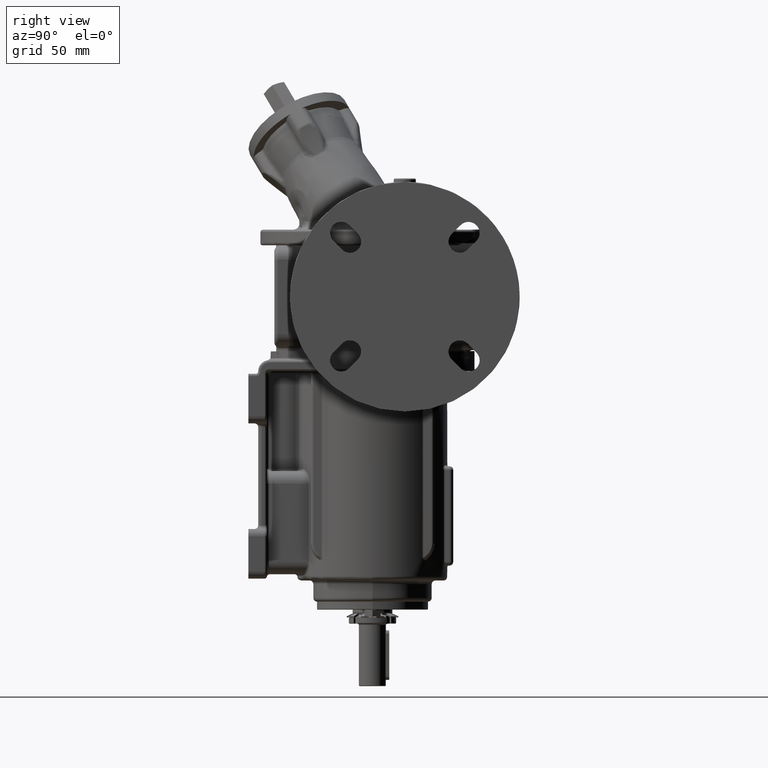
[diagram: clean part render]
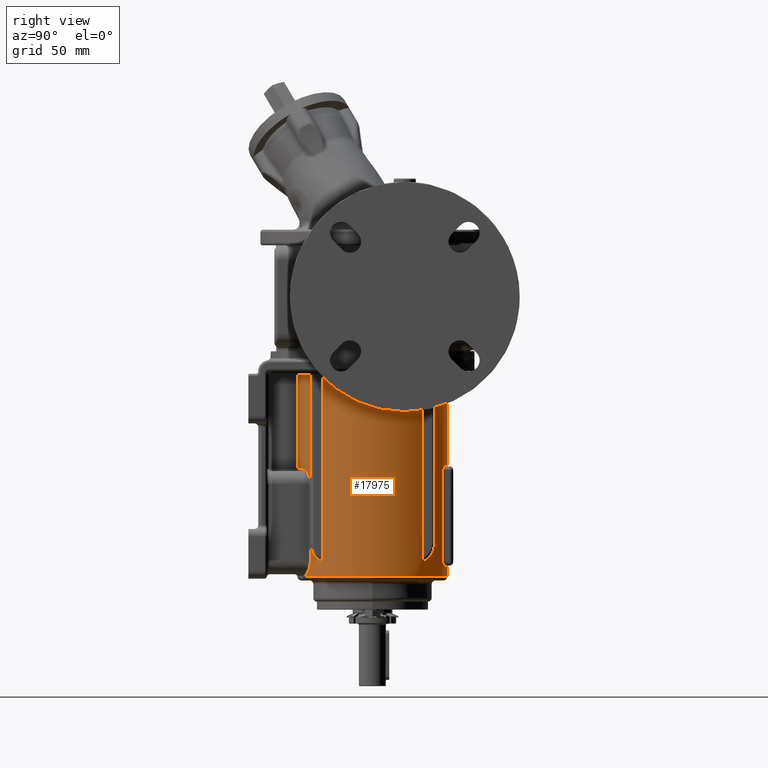
[diagram: same view with one face highlighted and labeled with its STEP entity id]
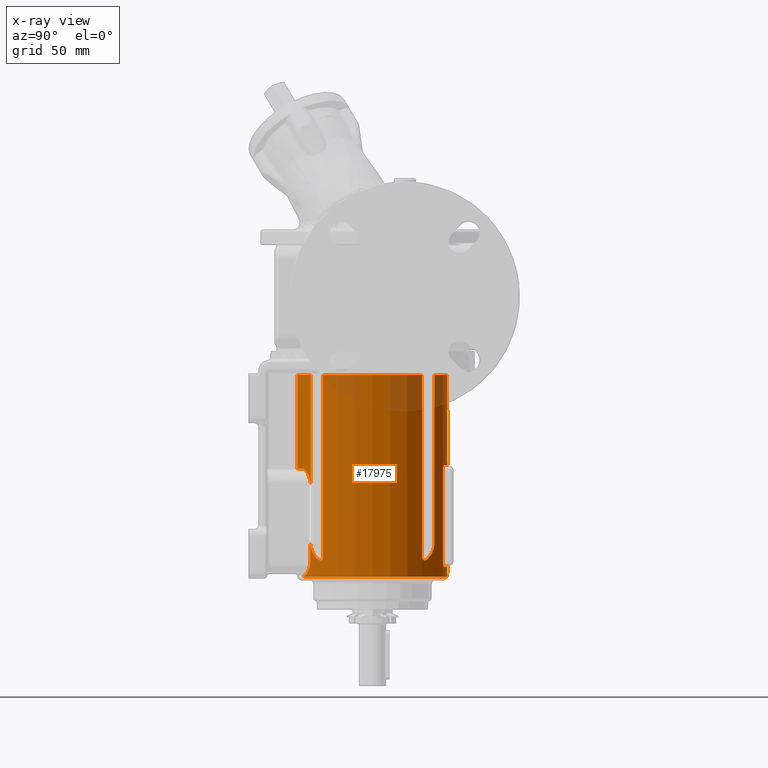
[diagram: x-ray of the same camera — body ghosted, the highlighted face saturated]
A machine part, right view. The second image highlights one B-rep face of the part: STEP entity #17975.
The next image is the same camera in x-ray: the body ghosted, the highlighted face saturated — about 9% of this face is hidden behind the body in this view.
In plain terms, the highlighted cylindrical surface (partial cylindrical patch) has radius 60.5 mm, axis along (0, 0, 1).
Its self-contained STEP definition (entity closure, byte-faithful):
#146=CARTESIAN_POINT('',(3.427868282184E1,-4.9852E1,-1.299999999441E1));
#148=CARTESIAN_POINT('',(0.E0,0.E0,-1.3E1));
#149=DIRECTION('',(0.E0,0.E0,-1.E0));
#150=DIRECTION('',(5.665897987080E-1,-8.24E-1,0.E0));
#151=AXIS2_PLACEMENT_3D('',#148,#149,#150);
#240=CARTESIAN_POINT('',(4.5496E1,-3.987936789870E1,-1.299999999308E1));
#307=CARTESIAN_POINT('',(0.E0,0.E0,-1.3E1));
#308=DIRECTION('',(0.E0,0.E0,-1.E0));
#309=DIRECTION('',(7.52E-1,6.591631057637E-1,0.E0));
#310=AXIS2_PLACEMENT_3D('',#307,#308,#309);
#399=CARTESIAN_POINT('',(3.427868282184E1,4.9852E1,-1.299999999326E1));
#463=CARTESIAN_POINT('',(-3.427868282184E1,4.9852E1,-1.299999999441E1));
#465=CARTESIAN_POINT('',(0.E0,0.E0,-1.3E1));
#466=DIRECTION('',(0.E0,0.E0,-1.E0));
#467=DIRECTION('',(-5.665897987080E-1,8.24E-1,0.E0));
#468=AXIS2_PLACEMENT_3D('',#465,#466,#467);
#586=CARTESIAN_POINT('',(-4.5496E1,-3.987936789870E1,-1.299999999424E1));
#588=CARTESIAN_POINT('',(0.E0,0.E0,-1.3E1));
#589=DIRECTION('',(0.E0,0.E0,-1.E0));
#590=DIRECTION('',(-7.52E-1,-6.591631057637E-1,0.E0));
#591=AXIS2_PLACEMENT_3D('',#588,#589,#590);
#682=DIRECTION('',(-2.163996911087E-7,-1.896259167386E-7,1.E0));
#683=VECTOR('',#682,1.466418532104E2);
#684=CARTESIAN_POINT('',(-4.549596826675E1,-3.987934009161E1,
-1.596418532046E2));
#685=LINE('',#684,#683);
#736=CARTESIAN_POINT('',(-4.549596826675E1,-3.987934009161E1,
-1.596418532046E2));
#737=CARTESIAN_POINT('',(-4.549600003600E1,-3.987928219296E1,
-1.597113380164E2));
#738=CARTESIAN_POINT('',(-4.549381156651E1,-3.988190461758E1,
-1.598462653171E2));
#739=CARTESIAN_POINT('',(-4.548261520022E1,-3.989462396014E1,
-1.600358697402E2));
#740=CARTESIAN_POINT('',(-4.546508229438E1,-3.991461935863E1,
-1.602146673313E2));
#741=CARTESIAN_POINT('',(-4.544168127532E1,-3.994125763559E1,
-1.603837888715E2));
#742=CARTESIAN_POINT('',(-4.541281181260E1,-3.997408284020E1,
-1.605444179410E2));
#743=CARTESIAN_POINT('',(-4.537836977646E1,-4.001318044477E1,
-1.606980502244E2));
#744=CARTESIAN_POINT('',(-4.533816914688E1,-4.005872969157E1,
-1.608446602199E2));
#745=CARTESIAN_POINT('',(-4.529254496448E1,-4.011031183538E1,
-1.609839866809E2));
#746=CARTESIAN_POINT('',(-4.524229025143E1,-4.016699216673E1,
-1.611162957849E2));
#747=CARTESIAN_POINT('',(-4.518732199036E1,-4.022882565694E1,
-1.612424708144E2));
#748=CARTESIAN_POINT('',(-4.512720856409E1,-4.029625325108E1,
-1.613630656580E2));
#749=CARTESIAN_POINT('',(-4.506122434073E1,-4.037003354162E1,
-1.614779405995E2));
#750=CARTESIAN_POINT('',(-4.498949902850E1,-4.044995831280E1,
-1.615874709459E2));
#751=CARTESIAN_POINT('',(-4.491191105444E1,-4.053609572601E1,
-1.616918929141E2));
#752=CARTESIAN_POINT('',(-4.482847879352E1,-4.062835208852E1,
-1.617908412027E2));
#753=CARTESIAN_POINT('',(-4.473933987740E1,-4.072649847473E1,
-1.618834039821E2));
#754=CARTESIAN_POINT('',(-4.464457804459E1,-4.083036418853E1,
-1.619688133670E2));
#755=CARTESIAN_POINT('',(-4.454363700886E1,-4.094047270326E1,
-1.620473061554E2));
#756=CARTESIAN_POINT('',(-4.443592066697E1,-4.105737351082E1,
-1.621188436883E2));
#757=CARTESIAN_POINT('',(-4.432097256752E1,-4.118144588714E1,
-1.621831158700E2));
#758=CARTESIAN_POINT('',(-4.419902769076E1,-4.131231287652E1,
-1.622394359799E2));
#759=CARTESIAN_POINT('',(-4.407006828185E1,-4.144986783869E1,
-1.622867722110E2));
#760=CARTESIAN_POINT('',(-4.393401032478E1,-4.159406791222E1,
-1.623242340472E2));
#761=CARTESIAN_POINT('',(-4.379076890887E1,-4.174486373681E1,
-1.623510930434E2));
#762=CARTESIAN_POINT('',(-4.364044176566E1,-4.190200793043E1,
-1.623669177274E2));
#763=CARTESIAN_POINT('',(-4.348344026979E1,-4.206492719089E1,
-1.623708103543E2));
#764=CARTESIAN_POINT('',(-4.332035232272E1,-4.223287731297E1,
-1.623617149714E2));
#765=CARTESIAN_POINT('',(-4.315139564367E1,-4.240550806216E1,
-1.623389370513E2));
#766=CARTESIAN_POINT('',(-4.297635243349E1,-4.258291312762E1,
-1.623019815159E2));
#767=CARTESIAN_POINT('',(-4.279518962455E1,-4.276498946411E1,
-1.622499273568E2));
#768=CARTESIAN_POINT('',(-4.260884976616E1,-4.295066250210E1,
-1.621818406853E2));
#769=CARTESIAN_POINT('',(-4.241852856012E1,-4.313864459843E1,
-1.620973855730E2));
#770=CARTESIAN_POINT('',(-4.222448451805E1,-4.332860280599E1,
-1.619961474653E2));
#771=CARTESIAN_POINT('',(-4.202714138557E1,-4.352005101074E1,
-1.618775799078E2));
#772=CARTESIAN_POINT('',(-4.182562087284E1,-4.371377867978E1,
-1.617395206930E2));
#773=CARTESIAN_POINT('',(-4.169185780813E1,-4.384113605963E1,
-1.616370196911E2));
#774=CARTESIAN_POINT('',(-4.162281970866E1,-4.390659021914E1,
-1.615808854211E2));
#776=CARTESIAN_POINT('',(-4.162281970866E1,-4.390659021914E1,
-1.615808854211E2));
#777=CARTESIAN_POINT('',(-4.143494182917E1,-4.408469463403E1,
-1.614281665477E2));
#778=CARTESIAN_POINT('',(-4.105991029438E1,-4.443563379417E1,
-1.611136709313E2));
#779=CARTESIAN_POINT('',(-4.051292628113E1,-4.493471172367E1,
-1.606274579182E2));
#780=CARTESIAN_POINT('',(-3.998076119012E1,-4.540870950407E1,
-1.601259042402E2));
#781=CARTESIAN_POINT('',(-3.946730819866E1,-4.585551630533E1,
-1.596124720675E2));
#782=CARTESIAN_POINT('',(-3.897493580695E1,-4.627457351263E1,
-1.590898605885E2));
#783=CARTESIAN_POINT('',(-3.850590950296E1,-4.666542195004E1,
-1.585614986250E2));
#784=CARTESIAN_POINT('',(-3.806257219603E1,-4.702756992673E1,-1.580306581E2));
#785=CARTESIAN_POINT('',(-3.764685534554E1,-4.736087004419E1,
-1.575004590851E2));
#786=CARTESIAN_POINT('',(-3.725868384178E1,-4.766671483871E1,
-1.569723711821E2));
#787=CARTESIAN_POINT('',(-3.689776736494E1,-4.794651881505E1,
-1.564480429795E2));
#788=CARTESIAN_POINT('',(-3.656416418188E1,-4.820130277071E1,
-1.559286853994E2));
#789=CARTESIAN_POINT('',(-3.625756377157E1,-4.843225925357E1,
-1.554153545952E2));
#790=CARTESIAN_POINT('',(-3.597724136957E1,-4.864077455252E1,
-1.549089514394E2));
#791=CARTESIAN_POINT('',(-3.572219565096E1,-4.882831954134E1,
-1.544102586042E2));
#792=CARTESIAN_POINT('',(-3.549179304689E1,-4.899598787315E1,
-1.539199330240E2));
#793=CARTESIAN_POINT('',(-3.528481105089E1,-4.914520739853E1,
-1.534375365554E2));
#794=CARTESIAN_POINT('',(-3.509996875295E1,-4.927735173639E1,
-1.529623608720E2));
#795=CARTESIAN_POINT('',(-3.493605263028E1,-4.939366390630E1,
-1.524936247951E2));
#796=CARTESIAN_POINT('',(-3.479189717484E1,-4.949528122244E1,
-1.520304042557E2));
#797=CARTESIAN_POINT('',(-3.466702945002E1,-4.958279575469E1,
-1.515735145285E2));
#798=CARTESIAN_POINT('',(-3.456106648891E1,-4.965669438568E1,
-1.511243469018E2));
#799=CARTESIAN_POINT('',(-3.447294147560E1,-4.971789823412E1,
-1.506814267031E2));
#800=CARTESIAN_POINT('',(-3.440171290214E1,-4.976719888478E1,
-1.502413548060E2));
#801=CARTESIAN_POINT('',(-3.434665323118E1,-4.980520541631E1,
-1.498025820975E2));
#802=CARTESIAN_POINT('',(-3.430745657223E1,-4.983220714099E1,
-1.493658658206E2));
#803=CARTESIAN_POINT('',(-3.428393466393E1,-4.984839003825E1,
-1.489314022489E2));
#804=CARTESIAN_POINT('',(-3.427868194432E1,-4.985199921209E1,
-1.486435215652E2));
#805=CARTESIAN_POINT('',(-3.427868282189E1,-4.985199999996E1,
-1.484999999947E2));
#807=DIRECTION('',(4.065562974384E-13,-2.842695328794E-13,1.E0));
#808=VECTOR('',#807,1.355000000014E2);
#809=CARTESIAN_POINT('',(-3.427868282189E1,-4.985199999996E1,
-1.484999999947E2));
#810=LINE('',#809,#808);
#811=DIRECTION('',(3.514598471860E-12,-3.103801247876E-13,-1.E0));
#812=VECTOR('',#811,7.550000001257E1);
#813=CARTESIAN_POINT('',(-5.324000000001E0,-6.026528871581E1,
-1.299999999986E1));
#814=LINE('',#813,#812);
#815=CARTESIAN_POINT('',(0.E0,0.E0,-8.85E1));
#816=DIRECTION('',(0.E0,0.E0,-1.E0));
#817=DIRECTION('',(-8.8E-2,-9.961204746415E-1,0.E0));
#818=AXIS2_PLACEMENT_3D('',#815,#816,#817);
#820=CARTESIAN_POINT('',(-2.226399999968E1,-5.625446030329E1,-8.85E1));
#821=CARTESIAN_POINT('',(-2.242715239738E1,-5.618988829589E1,
-8.850000767868E1));
#822=CARTESIAN_POINT('',(-2.275409742356E1,-5.605885278170E1,
-8.850714208947E1));
#823=CARTESIAN_POINT('',(-2.324693550426E1,-5.585629055732E1,
-8.853950603546E1));
#824=CARTESIAN_POINT('',(-2.374037535618E1,-5.564836443838E1,
-8.859375351067E1));
#825=CARTESIAN_POINT('',(-2.423320204347E1,-5.543553062019E1,
-8.867002629290E1));
#826=CARTESIAN_POINT('',(-2.472403267663E1,-5.521836672031E1,
-8.876838897780E1));
#827=CARTESIAN_POINT('',(-2.521152066902E1,-5.499749384296E1,
-8.888882847677E1));
#828=CARTESIAN_POINT('',(-2.569499577304E1,-5.477327278377E1,
-8.903137771742E1));
#829=CARTESIAN_POINT('',(-2.617390704622E1,-5.454603213968E1,
-8.919612117252E1));
#830=CARTESIAN_POINT('',(-2.664711077143E1,-5.431641348399E1,
-8.938293253961E1));
#831=CARTESIAN_POINT('',(-2.711304560140E1,-5.408531888010E1,
-8.959137487411E1));
#832=CARTESIAN_POINT('',(-2.757033006756E1,-5.385362616578E1,
-8.982092942587E1));
#833=CARTESIAN_POINT('',(-2.801771166109E1,-5.362220388035E1,
-9.007108481220E1));
#834=CARTESIAN_POINT('',(-2.845401671101E1,-5.339193003601E1,
-9.034122246452E1));
#835=CARTESIAN_POINT('',(-2.887796638423E1,-5.316378698399E1,
-9.063050464907E1));
#836=CARTESIAN_POINT('',(-2.928834770400E1,-5.293877093637E1,
-9.093790740353E1));
#837=CARTESIAN_POINT('',(-2.968407633027E1,-5.271785009982E1,
-9.126238175548E1));
#838=CARTESIAN_POINT('',(-3.006418206592E1,-5.250196377131E1,
-9.160286912803E1));
#839=CARTESIAN_POINT('',(-3.042782591282E1,-5.229200404588E1,
-9.195821611008E1));
#840=CARTESIAN_POINT('',(-3.077436448875E1,-5.208876843281E1,
-9.232727311195E1));
#841=CARTESIAN_POINT('',(-3.110327648276E1,-5.189299117864E1,
-9.270883050345E1));
#842=CARTESIAN_POINT('',(-3.141384799905E1,-5.170552700994E1,
-9.310142658504E1));
#843=CARTESIAN_POINT('',(-3.170544359466E1,-5.152719071044E1,
-9.350343248571E1));
#844=CARTESIAN_POINT('',(-3.197795509963E1,-5.135846920588E1,
-9.391371430655E1));
#845=CARTESIAN_POINT('',(-3.223144516466E1,-5.119972295448E1,
-9.433130923686E1));
#846=CARTESIAN_POINT('',(-3.246597427204E1,-5.105128996571E1,
-9.475518592665E1));
#847=CARTESIAN_POINT('',(-3.268163077320E1,-5.091346592925E1,
-9.518435058252E1));
#848=CARTESIAN_POINT('',(-3.287855515677E1,-5.078648673170E1,
-9.561789589449E1));
#849=CARTESIAN_POINT('',(-3.305689622765E1,-5.067055539985E1,
-9.605496645633E1));
#850=CARTESIAN_POINT('',(-3.321697898067E1,-5.056573124945E1,
-9.649486380832E1));
#851=CARTESIAN_POINT('',(-3.335918231718E1,-5.047200661448E1,
-9.693708726029E1));
#852=CARTESIAN_POINT('',(-3.348379551893E1,-5.038940233656E1,
-9.738121978303E1));
#853=CARTESIAN_POINT('',(-3.359102603776E1,-5.031796532864E1,
-9.782700545872E1));
#854=CARTESIAN_POINT('',(-3.368114574881E1,-5.025767224492E1,
-9.827379306391E1));
#855=CARTESIAN_POINT('',(-3.375439760215E1,-5.020849188203E1,
-9.872088933337E1));
#856=CARTESIAN_POINT('',(-3.381092187325E1,-5.017043617463E1,
-9.916771908570E1));
#857=CARTESIAN_POINT('',(-3.385090437983E1,-5.014346164768E1,
-9.961367411689E1));
#858=CARTESIAN_POINT('',(-3.387473032208E1,-5.012736516241E1,
-1.000581408590E2));
#859=CARTESIAN_POINT('',(-3.387999770741E1,-5.012380446932E1,
-1.003529370737E2));
#860=CARTESIAN_POINT('',(-3.387999999997E1,-5.012380272887E1,
-1.005000000046E2));
#862=DIRECTION('',(2.522990635126E-13,-1.712069639750E-13,-1.E0));
#863=VECTOR('',#862,6.299999999072E1);
#864=CARTESIAN_POINT('',(-3.387999999997E1,-5.012380272887E1,
-1.005000000046E2));
#865=LINE('',#864,#863);
#866=CARTESIAN_POINT('',(-3.387999999995E1,-5.012380272888E1,
-1.634999999953E2));
#867=CARTESIAN_POINT('',(-3.387999550886E1,-5.012380523609E1,
-1.636496968049E2));
#868=CARTESIAN_POINT('',(-3.387448398262E1,-5.012753204720E1,
-1.639490881775E2));
#869=CARTESIAN_POINT('',(-3.384991140769E1,-5.014413214525E1,
-1.643983291555E2));
#870=CARTESIAN_POINT('',(-3.380909152978E1,-5.017167001508E1,
-1.648472420890E2));
#871=CARTESIAN_POINT('',(-3.375194200251E1,-5.021014297858E1,
-1.652955141317E2));
#872=CARTESIAN_POINT('',(-3.367821073008E1,-5.025963946079E1,
-1.657426505732E2));
#873=CARTESIAN_POINT('',(-3.358759828474E1,-5.032025388040E1,
-1.661884383574E2));
#874=CARTESIAN_POINT('',(-3.347989825368E1,-5.039199242802E1,
-1.666333966885E2));
#875=CARTESIAN_POINT('',(-3.335465978593E1,-5.047499635755E1,
-1.670778256923E2));
#876=CARTESIAN_POINT('',(-3.321169974252E1,-5.056919989785E1,
-1.675206724938E2));
#877=CARTESIAN_POINT('',(-3.305090992653E1,-5.067446127739E1,
-1.679605897439E2));
#878=CARTESIAN_POINT('',(-3.287200712650E1,-5.079072612860E1,
-1.683971521459E2));
#879=CARTESIAN_POINT('',(-3.267450841323E1,-5.091803839855E1,
-1.688304034611E2));
#880=CARTESIAN_POINT('',(-3.245804000318E1,-5.105633660359E1,
-1.692597774507E2));
#881=CARTESIAN_POINT('',(-3.222275223675E1,-5.120519561201E1,
-1.696836817924E2));
#882=CARTESIAN_POINT('',(-3.196885009086E1,-5.136413779772E1,
-1.701006359590E2));
#883=CARTESIAN_POINT('',(-3.169615099046E1,-5.153290777467E1,
-1.705099587606E2));
#884=CARTESIAN_POINT('',(-3.140439733953E1,-5.171126781831E1,
-1.709110351910E2));
#885=CARTESIAN_POINT('',(-3.109378249116E1,-5.189868030208E1,
-1.713026348888E2));
#886=CARTESIAN_POINT('',(-3.076490912808E1,-5.209435335626E1,
-1.716832134956E2));
#887=CARTESIAN_POINT('',(-3.041838763936E1,-5.229749471662E1,
-1.720513938365E2));
#888=CARTESIAN_POINT('',(-3.005479058350E1,-5.250734007951E1,
-1.724058928620E2));
#889=CARTESIAN_POINT('',(-2.967484103699E1,-5.272304839038E1,
-1.727455034554E2));
#890=CARTESIAN_POINT('',(-2.927935992376E1,-5.294374139341E1,
-1.730691092091E2));
#891=CARTESIAN_POINT('',(-2.886926872338E1,-5.316850936338E1,
-1.733757028812E2));
#892=CARTESIAN_POINT('',(-2.844565884727E1,-5.339638188927E1,
-1.736641993559E2));
#893=CARTESIAN_POINT('',(-2.800977914393E1,-5.362634616832E1,
-1.739335690336E2));
#894=CARTESIAN_POINT('',(-2.756287753380E1,-5.385743895569E1,
-1.741830034726E2));
#895=CARTESIAN_POINT('',(-2.710611536501E1,-5.408879040439E1,
-1.744118993336E2));
#896=CARTESIAN_POINT('',(-2.664075976389E1,-5.431952648731E1,
-1.746197356517E2));
#897=CARTESIAN_POINT('',(-2.616821284503E1,-5.454876148686E1,
-1.748059736509E2));
#898=CARTESIAN_POINT('',(-2.569004862524E1,-5.477559059963E1,
-1.749701908818E2));
#899=CARTESIAN_POINT('',(-2.520726609865E1,-5.499944156640E1,
-1.751123100481E2));
#900=CARTESIAN_POINT('',(-2.472043536176E1,-5.521997489367E1,
-1.752323970343E2));
#901=CARTESIAN_POINT('',(-2.423028257202E1,-5.543680422312E1,
-1.753304721569E2));
#902=CARTESIAN_POINT('',(-2.373817559899E1,-5.564930034020E1,
-1.754065200317E2));
#903=CARTESIAN_POINT('',(-2.324545844487E1,-5.585690250883E1,
-1.754606076642E2));
#904=CARTESIAN_POINT('',(-2.275340154379E1,-5.605913311386E1,
-1.754928770182E2));
#905=CARTESIAN_POINT('',(-2.242684145505E1,-5.619001120145E1,
-1.754999916056E2));
#906=CARTESIAN_POINT('',(-2.226393104576E1,-5.625448759320E1,
-1.755000000019E2));
#908=CARTESIAN_POINT('',(0.E0,0.E0,-1.755E2));
#909=DIRECTION('',(0.E0,0.E0,-1.E0));
#910=DIRECTION('',(-3.679999988767E-1,-9.298257905795E-1,0.E0));
#911=AXIS2_PLACEMENT_3D('',#908,#909,#910);
#913=CARTESIAN_POINT('',(0.E0,0.E0,-1.755E2));
#914=DIRECTION('',(0.E0,0.E0,-1.E0));
#915=DIRECTION('',(-1.E0,0.E0,0.E0));
#916=AXIS2_PLACEMENT_3D('',#913,#914,#915);
#918=CARTESIAN_POINT('',(0.E0,0.E0,-1.755E2));
#919=DIRECTION('',(0.E0,0.E0,-1.E0));
#920=DIRECTION('',(1.E0,0.E0,0.E0));
#921=AXIS2_PLACEMENT_3D('',#918,#919,#920);
#923=CARTESIAN_POINT('',(2.226392916157E1,-5.625448833890E1,-1.755000000016E2));
#924=CARTESIAN_POINT('',(2.242708158049E1,-5.618991632320E1,-1.754999923229E2));
#925=CARTESIAN_POINT('',(2.275413027036E1,-5.605883978207E1,-1.754928579106E2));
#926=CARTESIAN_POINT('',(2.324692670629E1,-5.585629403922E1,-1.754604939644E2));
#927=CARTESIAN_POINT('',(2.374037773231E1,-5.564836349748E1,-1.754062464872E2));
#928=CARTESIAN_POINT('',(2.423320143603E1,-5.543553085960E1,-1.753299737028E2));
#929=CARTESIAN_POINT('',(2.472403287403E1,-5.521836664073E1,-1.752316110160E2));
#930=CARTESIAN_POINT('',(2.521152065079E1,-5.499749384846E1,-1.751111715158E2));
#931=CARTESIAN_POINT('',(2.569499580966E1,-5.477327276748E1,-1.749686222747E2));
#932=CARTESIAN_POINT('',(2.617390706580E1,-5.454603213001E1,-1.748038788190E2));
#933=CARTESIAN_POINT('',(2.664711079492E1,-5.431641347254E1,-1.746170674509E2));
#934=CARTESIAN_POINT('',(2.711304562343E1,-5.408531886903E1,-1.744086251153E2));
#935=CARTESIAN_POINT('',(2.757033008863E1,-5.385362615499E1,-1.741790705630E2));
#936=CARTESIAN_POINT('',(2.801771168055E1,-5.362220387017E1,-1.739289151763E2));
#937=CARTESIAN_POINT('',(2.845401672919E1,-5.339193002632E1,-1.736587775236E2));
#938=CARTESIAN_POINT('',(2.887796640124E1,-5.316378697474E1,-1.733694953387E2));
#939=CARTESIAN_POINT('',(2.928834771981E1,-5.293877092762E1,-1.730620925841E2));
#940=CARTESIAN_POINT('',(2.968407634481E1,-5.271785009163E1,-1.727376182320E2));
#941=CARTESIAN_POINT('',(3.006418207920E1,-5.250196376370E1,-1.723971308595E2));
#942=CARTESIAN_POINT('',(3.042782592490E1,-5.229200403885E1,-1.720417838776E2));
#943=CARTESIAN_POINT('',(3.077436449967E1,-5.208876842636E1,-1.716727268759E2));
#944=CARTESIAN_POINT('',(3.110327649256E1,-5.189299117276E1,-1.712911694847E2));
#945=CARTESIAN_POINT('',(3.141384800776E1,-5.170552700465E1,-1.708985734034E2));
#946=CARTESIAN_POINT('',(3.170544360233E1,-5.152719070571E1,-1.704965675032E2));
#947=CARTESIAN_POINT('',(3.197795510634E1,-5.135846920171E1,-1.700862856829E2));
#948=CARTESIAN_POINT('',(3.223144517046E1,-5.119972295082E1,-1.696686907531E2));
#949=CARTESIAN_POINT('',(3.246597427701E1,-5.105128996255E1,-1.692448140639E2));
#950=CARTESIAN_POINT('',(3.268163077740E1,-5.091346592655E1,-1.688156494087E2));
#951=CARTESIAN_POINT('',(3.287855516027E1,-5.078648672943E1,-1.683821040974E2));
#952=CARTESIAN_POINT('',(3.305689623052E1,-5.067055539798E1,-1.679450335362E2));
#953=CARTESIAN_POINT('',(3.321697898298E1,-5.056573124794E1,-1.675051361849E2));
#954=CARTESIAN_POINT('',(3.335918231899E1,-5.047200661328E1,-1.670629127337E2));
#955=CARTESIAN_POINT('',(3.348379552030E1,-5.038940233565E1,-1.666187802117E2));
#956=CARTESIAN_POINT('',(3.359102603876E1,-5.031796532797E1,-1.661729945367E2));
#957=CARTESIAN_POINT('',(3.368114574949E1,-5.025767224446E1,-1.657262069323E2));
#958=CARTESIAN_POINT('',(3.375439760258E1,-5.020849188174E1,-1.652791106636E2));
#959=CARTESIAN_POINT('',(3.381092187349E1,-5.017043617447E1,-1.648322809120E2));
#960=CARTESIAN_POINT('',(3.385090437993E1,-5.014346164762E1,-1.643863258816E2));
#961=CARTESIAN_POINT('',(3.387473032210E1,-5.012736516240E1,-1.639418591403E2));
#962=CARTESIAN_POINT('',(3.387999770741E1,-5.012380446932E1,-1.636470629261E2));
#963=CARTESIAN_POINT('',(3.387999999997E1,-5.012380272887E1,-1.634999999954E2));
#965=DIRECTION('',(-2.521862789514E-13,-1.710941794138E-13,1.E0));
#966=VECTOR('',#965,6.299999999072E1);
#967=CARTESIAN_POINT('',(3.387999999997E1,-5.012380272887E1,-1.634999999954E2));
#968=LINE('',#967,#966);
#969=CARTESIAN_POINT('',(3.387999999995E1,-5.012380272888E1,-1.005000000047E2));
#970=CARTESIAN_POINT('',(3.387999550886E1,-5.012380523609E1,-1.003503031948E2));
#971=CARTESIAN_POINT('',(3.387448398260E1,-5.012753204722E1,-1.000509118216E2));
#972=CARTESIAN_POINT('',(3.384991140757E1,-5.014413214533E1,-9.960167084267E1));
#973=CARTESIAN_POINT('',(3.380909152949E1,-5.017167001527E1,-9.915275790828E1));
#974=CARTESIAN_POINT('',(3.375194200200E1,-5.021014297893E1,-9.870448586471E1));
#975=CARTESIAN_POINT('',(3.367821072927E1,-5.025963946134E1,-9.825734942229E1));
#976=CARTESIAN_POINT('',(3.358759828356E1,-5.032025388119E1,-9.781156163723E1));
#977=CARTESIAN_POINT('',(3.347989825205E1,-5.039199242910E1,-9.736660330525E1));
#978=CARTESIAN_POINT('',(3.335465978378E1,-5.047499635897E1,-9.692217430057E1));
#979=CARTESIAN_POINT('',(3.321169973978E1,-5.056919989966E1,-9.647932749820E1));
#980=CARTESIAN_POINT('',(3.305090992311E1,-5.067446127961E1,-9.603941024726E1));
#981=CARTESIAN_POINT('',(3.287200712234E1,-5.079072613129E1,-9.560284784441E1));
#982=CARTESIAN_POINT('',(3.267450840824E1,-5.091803840175E1,-9.516959652843E1));
#983=CARTESIAN_POINT('',(3.245803999727E1,-5.105633660735E1,-9.474022253813E1));
#984=CARTESIAN_POINT('',(3.222275222985E1,-5.120519561635E1,-9.431631819574E1));
#985=CARTESIAN_POINT('',(3.196885008291E1,-5.136413780267E1,-9.389936402851E1));
#986=CARTESIAN_POINT('',(3.169615098137E1,-5.153290778026E1,-9.349004122635E1));
#987=CARTESIAN_POINT('',(3.140439732921E1,-5.171126782458E1,-9.308896479541E1));
#988=CARTESIAN_POINT('',(3.109378247956E1,-5.189868030903E1,-9.269736509718E1));
#989=CARTESIAN_POINT('',(3.076490911515E1,-5.209435336390E1,-9.231678649001E1));
#990=CARTESIAN_POINT('',(3.041838762506E1,-5.229749472495E1,-9.194860614890E1));
#991=CARTESIAN_POINT('',(3.005479056776E1,-5.250734008852E1,-9.159410712324E1));
#992=CARTESIAN_POINT('',(2.967484101976E1,-5.272304840008E1,-9.125449652983E1));
#993=CARTESIAN_POINT('',(2.927935990504E1,-5.294374140377E1,-9.093089077622E1));
#994=CARTESIAN_POINT('',(2.886926870326E1,-5.316850937431E1,-9.062429710444E1));
#995=CARTESIAN_POINT('',(2.844565882576E1,-5.339638190073E1,-9.033580063008E1));
#996=CARTESIAN_POINT('',(2.800977912083E1,-5.362634618039E1,-9.006643095283E1));
#997=CARTESIAN_POINT('',(2.756287750883E1,-5.385743896846E1,-8.981699651417E1));
#998=CARTESIAN_POINT('',(2.710611533903E1,-5.408879041744E1,-8.958810065401E1));
#999=CARTESIAN_POINT('',(2.664075973653E1,-5.431952650065E1,-8.938026433717E1));
#1000=CARTESIAN_POINT('',(2.616821282125E1,-5.454876149854E1,
-8.919402633919E1));
#1001=CARTESIAN_POINT('',(2.569004858418E1,-5.477559061803E1,
-8.902980910886E1));
#1002=CARTESIAN_POINT('',(2.520726611054E1,-5.499944156372E1,
-8.888768994310E1));
#1003=CARTESIAN_POINT('',(2.472043516399E1,-5.521997497364E1,
-8.876760295836E1));
#1004=CARTESIAN_POINT('',(2.423028315860E1,-5.543680399212E1,
-8.866952783813E1));
#1005=CARTESIAN_POINT('',(2.373817328341E1,-5.564930125720E1,
-8.859347996582E1));
#1006=CARTESIAN_POINT('',(2.324546700709E1,-5.585689912023E1,
-8.853939233569E1));
#1007=CARTESIAN_POINT('',(2.275336957719E1,-5.605914576511E1,
-8.850712298197E1));
#1008=CARTESIAN_POINT('',(2.242691038408E1,-5.618998392128E1,
-8.850000839636E1));
#1009=CARTESIAN_POINT('',(2.226399999979E1,-5.625446030325E1,-8.85E1));
#1011=CARTESIAN_POINT('',(0.E0,0.E0,-8.85E1));
#1012=DIRECTION('',(0.E0,0.E0,-1.E0));
#1013=DIRECTION('',(3.68E-1,-9.298257901349E-1,0.E0));
#1014=AXIS2_PLACEMENT_3D('',#1011,#1012,#1013);
#1016=DIRECTION('',(3.612062818920E-12,3.188501706395E-13,1.E0));
#1017=VECTOR('',#1016,7.550000001338E1);
#1018=CARTESIAN_POINT('',(5.323999999736E0,-6.026528871583E1,
-8.850000001243E1));
#1019=LINE('',#1018,#1017);
#1020=DIRECTION('',(7.750946256504E-13,5.333527797503E-13,-1.E0));
#1021=VECTOR('',#1020,1.354999999962E2);
#1022=CARTESIAN_POINT('',(3.427868282184E1,-4.9852E1,-1.299999999441E1));
#1023=LINE('',#1022,#1021);
#1024=CARTESIAN_POINT('',(3.427868282194E1,-4.985199999993E1,
-1.484999999906E2));
#1025=CARTESIAN_POINT('',(3.427867806765E1,-4.985200089860E1,
-1.486426630992E2));
#1026=CARTESIAN_POINT('',(3.428389961244E1,-4.984841459374E1,
-1.489292915959E2));
#1027=CARTESIAN_POINT('',(3.430742301134E1,-4.983223013578E1,
-1.493635012278E2));
#1028=CARTESIAN_POINT('',(3.434670651900E1,-4.980516875687E1,
-1.498008974402E2));
#1029=CARTESIAN_POINT('',(3.440190279202E1,-4.976706769752E1,
-1.502407996875E2));
#1030=CARTESIAN_POINT('',(3.447317419534E1,-4.971773680480E1,
-1.506820980267E2));
#1031=CARTESIAN_POINT('',(3.456102764570E1,-4.965672102039E1,
-1.511246250007E2));
#1032=CARTESIAN_POINT('',(3.466642193469E1,-4.958321968927E1,
-1.515715724806E2));
#1033=CARTESIAN_POINT('',(3.479055259682E1,-4.949622546740E1,
-1.520259224434E2));
#1034=CARTESIAN_POINT('',(3.493434945333E1,-4.939486845888E1,
-1.524881726664E2));
#1035=CARTESIAN_POINT('',(3.509851865137E1,-4.927838531342E1,
-1.529579328997E2));
#1036=CARTESIAN_POINT('',(3.528373195412E1,-4.914598267755E1,
-1.534346857189E2));
#1037=CARTESIAN_POINT('',(3.549063001168E1,-4.899682905905E1,
-1.539176732857E2));
#1038=CARTESIAN_POINT('',(3.571991983993E1,-4.882998051330E1,
-1.544063166114E2));
#1039=CARTESIAN_POINT('',(3.597363043724E1,-4.864344322707E1,
-1.549028544057E2));
#1040=CARTESIAN_POINT('',(3.625430617651E1,-4.843470144380E1,
-1.554097273706E2));
#1041=CARTESIAN_POINT('',(3.656240422782E1,-4.820264278843E1,
-1.559254994998E2));
#1042=CARTESIAN_POINT('',(3.689710038701E1,-4.794703521549E1,
-1.564472917038E2));
#1043=CARTESIAN_POINT('',(3.725891816088E1,-4.766653703911E1,
-1.569734752687E2));
#1044=CARTESIAN_POINT('',(3.764907465891E1,-4.735911840532E1,
-1.575038506834E2));
#1045=CARTESIAN_POINT('',(3.806802017233E1,-4.702317785014E1,
-1.580373171184E2));
#1046=CARTESIAN_POINT('',(3.851543918278E1,-4.665758563266E1,
-1.585725416456E2));
#1047=CARTESIAN_POINT('',(3.899018615362E1,-4.626175729535E1,
-1.591069646414E2));
#1048=CARTESIAN_POINT('',(3.948675209723E1,-4.583879553402E1,
-1.596328135069E2));
#1049=CARTESIAN_POINT('',(4.000082497255E1,-4.539101483222E1,
-1.601454877406E2));
#1050=CARTESIAN_POINT('',(4.052963962521E1,-4.491965180552E1,
-1.606425604857E2));
#1051=CARTESIAN_POINT('',(4.107632841148E1,-4.442035126716E1,
-1.611282662549E2));
#1052=CARTESIAN_POINT('',(4.143849862862E1,-4.408139001708E1,
-1.614298294660E2));
#1053=CARTESIAN_POINT('',(4.162886594296E1,-4.390084018257E1,
-1.615846396089E2));
#1055=CARTESIAN_POINT('',(4.162886594296E1,-4.390084018257E1,
-1.615846396089E2));
#1056=CARTESIAN_POINT('',(4.167333317572E1,-4.385867279910E1,
-1.616207761792E2));
#1057=CARTESIAN_POINT('',(4.177541526079E1,-4.376162359351E1,
-1.617015356639E2));
#1058=CARTESIAN_POINT('',(4.190585186843E1,-4.363667518982E1,
-1.617947405540E2));
#1059=CARTESIAN_POINT('',(4.203609788476E1,-4.351123315427E1,
-1.618816830424E2));
#1060=CARTESIAN_POINT('',(4.216269405559E1,-4.338856317450E1,
-1.619591803160E2));
#1061=CARTESIAN_POINT('',(4.228909021624E1,-4.326538337892E1,
-1.620301196072E2));
#1062=CARTESIAN_POINT('',(4.241715939640E1,-4.313983675121E1,
-1.620953320448E2));
#1063=CARTESIAN_POINT('',(4.254706049428E1,-4.301172905412E1,
-1.621546934012E2));
#1064=CARTESIAN_POINT('',(4.267857020894E1,-4.288124941361E1,
-1.622078143519E2));
#1065=CARTESIAN_POINT('',(4.281674945150E1,-4.274329859785E1,
-1.622559475595E2));
#1066=CARTESIAN_POINT('',(4.296664881026E1,-4.259265180332E1,
-1.622991397987E2));
#1067=CARTESIAN_POINT('',(4.313323609204E1,-4.242397919329E1,
-1.623356622233E2));
#1068=CARTESIAN_POINT('',(4.330639699348E1,-4.224720386255E1,
-1.623604077184E2));
#1069=CARTESIAN_POINT('',(4.347439881133E1,-4.207427857563E1,
-1.623707292414E2));
#1070=CARTESIAN_POINT('',(4.363196954474E1,-4.191082842627E1,
-1.623675158490E2));
#1071=CARTESIAN_POINT('',(4.378193369430E1,-4.175412985967E1,
-1.623523028170E2));
#1072=CARTESIAN_POINT('',(4.392555378384E1,-4.160299994527E1,
-1.623260693082E2));
#1073=CARTESIAN_POINT('',(4.406245583543E1,-4.145796208422E1,
-1.622891898574E2));
#1074=CARTESIAN_POINT('',(4.419233885600E1,-4.131946976417E1,
-1.622422762896E2));
#1075=CARTESIAN_POINT('',(4.431505797937E1,-4.118781189139E1,
-1.621861841210E2));
#1076=CARTESIAN_POINT('',(4.443068332864E1,-4.106304237963E1,
-1.621219690274E2));
#1077=CARTESIAN_POINT('',(4.453905716680E1,-4.094545619700E1,
-1.620505018143E2));
#1078=CARTESIAN_POINT('',(4.464058105960E1,-4.083473506931E1,
-1.619721041282E2));
#1079=CARTESIAN_POINT('',(4.473586581046E1,-4.073031533695E1,
-1.618868075477E2));
#1080=CARTESIAN_POINT('',(4.482547365243E1,-4.063166831203E1,
-1.617943475239E2));
#1081=CARTESIAN_POINT('',(4.490928533763E1,-4.053900518464E1,
-1.616952850058E2));
#1082=CARTESIAN_POINT('',(4.498716487727E1,-4.045255458213E1,
-1.615907541089E2));
#1083=CARTESIAN_POINT('',(4.505908970713E1,-4.037241634959E1,
-1.614812678911E2));
#1084=CARTESIAN_POINT('',(4.512529896349E1,-4.029839197658E1,
-1.613666228279E2));
#1085=CARTESIAN_POINT('',(4.518564945150E1,-4.023070446036E1,
-1.612462974777E2));
#1086=CARTESIAN_POINT('',(4.524074265220E1,-4.016873535557E1,
-1.611202105260E2));
#1087=CARTESIAN_POINT('',(4.529114312037E1,-4.011189489900E1,
-1.609878763860E2));
#1088=CARTESIAN_POINT('',(4.533699786715E1,-4.006005556484E1,
-1.608483116158E2));
#1089=CARTESIAN_POINT('',(4.537758322059E1,-4.001407271059E1,
-1.607013461501E2));
#1090=CARTESIAN_POINT('',(4.541228162677E1,-3.997468522191E1,
-1.605473725720E2));
#1091=CARTESIAN_POINT('',(4.544127791384E1,-3.994171671252E1,
-1.603867036924E2));
#1092=CARTESIAN_POINT('',(4.546475966712E1,-3.991498640590E1,
-1.602175843060E2));
#1093=CARTESIAN_POINT('',(4.548240005734E1,-3.989487104735E1,
-1.600385115830E2));
#1094=CARTESIAN_POINT('',(4.549369331497E1,-3.988203287666E1,
-1.598481071603E2));
#1095=CARTESIAN_POINT('',(4.549600334216E1,-3.987929274989E1,
-1.597120388656E2));
#1096=CARTESIAN_POINT('',(4.549597449945E1,-3.987934555183E1,
-1.596418532139E2));
#1098=DIRECTION('',(-1.884401481157E-7,-1.651321333076E-7,-1.E0));
#1099=VECTOR('',#1098,1.466418532135E2);
#1100=CARTESIAN_POINT('',(4.5496E1,3.987936789870E1,-1.299999999424E1));
#1101=LINE('',#1100,#1099);
#1102=CARTESIAN_POINT('',(4.549597236679E1,3.987934368342E1,-1.596418532077E2));
#1103=CARTESIAN_POINT('',(4.549600488448E1,3.987928402365E1,-1.597110954625E2));
#1104=CARTESIAN_POINT('',(4.549380593636E1,3.988190761590E1,-1.598456353809E2));
#1105=CARTESIAN_POINT('',(4.548270012438E1,3.989452803357E1,-1.600350050612E2));
#1106=CARTESIAN_POINT('',(4.546521234155E1,3.991447097245E1,-1.602137544494E2));
#1107=CARTESIAN_POINT('',(4.544181824696E1,3.994110186832E1,-1.603829842388E2));
#1108=CARTESIAN_POINT('',(4.541294132741E1,3.997393568993E1,-1.605437570419E2));
#1109=CARTESIAN_POINT('',(4.537850959655E1,4.001302185667E1,-1.606974590503E2));
#1110=CARTESIAN_POINT('',(4.533835580823E1,4.005851839570E1,-1.608440950618E2));
#1111=CARTESIAN_POINT('',(4.529274875062E1,4.011008171830E1,-1.609834402409E2));
#1112=CARTESIAN_POINT('',(4.524248447751E1,4.016677341706E1,-1.611158045909E2));
#1113=CARTESIAN_POINT('',(4.518749468814E1,4.022863169229E1,-1.612420545423E2));
#1114=CARTESIAN_POINT('',(4.512737138434E1,4.029607091276E1,-1.613627495391E2));
#1115=CARTESIAN_POINT('',(4.506138797702E1,4.036985089180E1,-1.614777139368E2));
#1116=CARTESIAN_POINT('',(4.498966461342E1,4.044977412316E1,-1.615872745959E2));
#1117=CARTESIAN_POINT('',(4.491211172123E1,4.053587332465E1,-1.616916651977E2));
#1118=CARTESIAN_POINT('',(4.482873172697E1,4.062807292936E1,-1.617905626544E2));
#1119=CARTESIAN_POINT('',(4.473961674811E1,4.072619434624E1,-1.618831260083E2));
#1120=CARTESIAN_POINT('',(4.464479853025E1,4.083012325688E1,-1.619686143527E2));
#1121=CARTESIAN_POINT('',(4.454375807094E1,4.094034118250E1,-1.620472061292E2));
#1122=CARTESIAN_POINT('',(4.443595203857E1,4.105733967539E1,-1.621188165412E2));
#1123=CARTESIAN_POINT('',(4.432097831059E1,4.118143971244E1,-1.621831187597E2));
#1124=CARTESIAN_POINT('',(4.419904074097E1,4.131229888263E1,-1.622394360011E2));
#1125=CARTESIAN_POINT('',(4.407009867033E1,4.144983548929E1,-1.622867406978E2));
#1126=CARTESIAN_POINT('',(4.393405176648E1,4.159402413925E1,-1.623241839606E2));
#1127=CARTESIAN_POINT('',(4.379078148683E1,4.174485071385E1,-1.623510655041E2));
#1128=CARTESIAN_POINT('',(4.364034266122E1,4.190211150598E1,-1.623669575393E2));
#1129=CARTESIAN_POINT('',(4.348321961347E1,4.206515545511E1,-1.623708140432E2));
#1130=CARTESIAN_POINT('',(4.332015943129E1,4.223307485408E1,-1.623616633933E2));
#1131=CARTESIAN_POINT('',(4.315137995480E1,4.240552345108E1,-1.623388930153E2));
#1132=CARTESIAN_POINT('',(4.297651828652E1,4.258274540026E1,-1.623020525230E2));
#1133=CARTESIAN_POINT('',(4.279541109920E1,4.276476778979E1,-1.622500111011E2));
#1134=CARTESIAN_POINT('',(4.260902255335E1,4.295049155922E1,-1.621818914296E2));
#1135=CARTESIAN_POINT('',(4.241851089571E1,4.313866222628E1,-1.620973515244E2));
#1136=CARTESIAN_POINT('',(4.222444863858E1,4.332863809473E1,-1.619961761770E2));
#1137=CARTESIAN_POINT('',(4.202707533174E1,4.352011366917E1,-1.618774381257E2));
#1138=CARTESIAN_POINT('',(4.182729470853E1,4.371216616775E1,-1.617408672182E2));
#1139=CARTESIAN_POINT('',(4.169183228599E1,4.384118631913E1,-1.616366146948E2));
#1140=CARTESIAN_POINT('',(4.162441805305E1,4.390510001769E1,-1.615818223518E2));
#1142=CARTESIAN_POINT('',(4.162441805305E1,4.390510001769E1,-1.615818223518E2));
#1143=CARTESIAN_POINT('',(4.143453511705E1,4.408512052217E1,-1.614274812178E2));
#1144=CARTESIAN_POINT('',(4.106026133388E1,4.443530013047E1,-1.611140784416E2));
#1145=CARTESIAN_POINT('',(4.050971327701E1,4.493763842614E1,-1.606245814676E2));
#1146=CARTESIAN_POINT('',(3.997549845489E1,4.541335344323E1,-1.601206700143E2));
#1147=CARTESIAN_POINT('',(3.945961851166E1,4.586214956403E1,-1.596044446564E2));
#1148=CARTESIAN_POINT('',(3.896520797480E1,4.628277329634E1,-1.590792980128E2));
#1149=CARTESIAN_POINT('',(3.849511897185E1,4.667432740283E1,-1.585489441274E2));
#1150=CARTESIAN_POINT('',(3.805099514043E1,4.703694209215E1,-1.580161353866E2));
#1151=CARTESIAN_POINT('',(3.763413781800E1,4.737098125305E1,-1.574835928751E2));
#1152=CARTESIAN_POINT('',(3.724510373286E1,4.767732804887E1,-1.569533788198E2));
#1153=CARTESIAN_POINT('',(3.688421513314E1,4.795694320950E1,-1.564275741254E2));
#1154=CARTESIAN_POINT('',(3.655122256814E1,4.821111416902E1,-1.559074493357E2));
#1155=CARTESIAN_POINT('',(3.624557455086E1,4.844122866066E1,-1.553943901935E2));
#1156=CARTESIAN_POINT('',(3.596654367312E1,4.864868102310E1,-1.548889427163E2));
#1157=CARTESIAN_POINT('',(3.571297928445E1,4.883505737970E1,-1.543912877417E2));
#1158=CARTESIAN_POINT('',(3.548364658710E1,4.900188584046E1,-1.539014950360E2));
#1159=CARTESIAN_POINT('',(3.527758104652E1,4.915039562326E1,-1.534195451219E2));
#1160=CARTESIAN_POINT('',(3.509369030345E1,4.928182147917E1,-1.529451909148E2));
#1161=CARTESIAN_POINT('',(3.493080769532E1,4.939737144014E1,-1.524778376011E2));
#1162=CARTESIAN_POINT('',(3.478790552375E1,4.949808500992E1,-1.520170652344E2));
#1163=CARTESIAN_POINT('',(3.466439013072E1,4.958463955549E1,-1.515635725006E2));
#1164=CARTESIAN_POINT('',(3.455948039676E1,4.965779748101E1,-1.511173947064E2));
#1165=CARTESIAN_POINT('',(3.447197963398E1,4.971856478599E1,-1.506758105961E2));
#1166=CARTESIAN_POINT('',(3.440110489341E1,4.976761897812E1,-1.502358884290E2));
#1167=CARTESIAN_POINT('',(3.434632094356E1,4.980543447713E1,-1.497979501494E2));
#1168=CARTESIAN_POINT('',(3.430731300849E1,4.983230586459E1,-1.493624077051E2));
#1169=CARTESIAN_POINT('',(3.428390341153E1,4.984841178723E1,-1.489294986294E2));
#1170=CARTESIAN_POINT('',(3.427867814269E1,4.985200125518E1,-1.486428510611E2));
#1171=CARTESIAN_POINT('',(3.427868282190E1,4.985199999996E1,-1.484999999944E2));
#1173=DIRECTION('',(-4.822776044821E-13,3.358690939119E-13,1.E0));
#1174=VECTOR('',#1173,1.355000000011E2);
#1175=CARTESIAN_POINT('',(3.427868282190E1,4.985199999996E1,-1.484999999944E2));
#1176=LINE('',#1175,#1174);
#1177=DIRECTION('',(-5.890425498811E-13,-4.063989817127E-13,-1.E0));
#1178=VECTOR('',#1177,1.354999999984E2);
#1179=CARTESIAN_POINT('',(-3.427868282184E1,4.9852E1,-1.299999999441E1));
#1180=LINE('',#1179,#1178);
#1181=CARTESIAN_POINT('',(-3.427868282192E1,4.985199999995E1,
-1.484999999928E2));
#1182=CARTESIAN_POINT('',(-3.427867937172E1,4.985200082629E1,
-1.486432072949E2));
#1183=CARTESIAN_POINT('',(-3.428391405416E1,4.984840427333E1,
-1.489302603008E2));
#1184=CARTESIAN_POINT('',(-3.430726225267E1,4.983234082889E1,
-1.493626232278E2));
#1185=CARTESIAN_POINT('',(-3.434611760232E1,4.980557460072E1,
-1.497971648405E2));
#1186=CARTESIAN_POINT('',(-3.440070831330E1,4.976789300577E1,
-1.502341147612E2));
#1187=CARTESIAN_POINT('',(-3.447151447032E1,4.971888733287E1,
-1.506735084821E2));
#1188=CARTESIAN_POINT('',(-3.455916279846E1,4.965801870344E1,
-1.511157517898E2));
#1189=CARTESIAN_POINT('',(-3.466416356845E1,4.958479782296E1,
-1.515624778259E2));
#1190=CARTESIAN_POINT('',(-3.478729802043E1,4.949851117017E1,
-1.520148953035E2));
#1191=CARTESIAN_POINT('',(-3.492954299544E1,4.939826480436E1,
-1.524740281386E2));
#1192=CARTESIAN_POINT('',(-3.509197902998E1,4.928303945475E1,
-1.529404892295E2));
#1193=CARTESIAN_POINT('',(-3.527563483910E1,4.915179209787E1,
-1.534146584664E2));
#1194=CARTESIAN_POINT('',(-3.548152459851E1,4.900342183445E1,
-1.538966962380E2));
#1195=CARTESIAN_POINT('',(-3.571063846354E1,4.883676881847E1,
-1.543866038446E2));
#1196=CARTESIAN_POINT('',(-3.596424660174E1,4.865037958897E1,
-1.548845648015E2));
#1197=CARTESIAN_POINT('',(-3.624343482252E1,4.844282991646E1,
-1.553905765770E2));
#1198=CARTESIAN_POINT('',(-3.654914260477E1,4.821269124001E1,
-1.559041613953E2));
#1199=CARTESIAN_POINT('',(-3.688224229393E1,4.795846083955E1,
-1.564245471497E2));
#1200=CARTESIAN_POINT('',(-3.724320183320E1,4.767881385118E1,
-1.569507461533E2));
#1201=CARTESIAN_POINT('',(-3.763229984585E1,4.737244196400E1,
-1.574811423841E2));
#1202=CARTESIAN_POINT('',(-3.804934254141E1,4.703827965631E1,
-1.580141203721E2));
#1203=CARTESIAN_POINT('',(-3.849358142046E1,4.667559613331E1,
-1.585471379848E2));
#1204=CARTESIAN_POINT('',(-3.896380548863E1,4.628395435E1,-1.590777833744E2));
#1205=CARTESIAN_POINT('',(-3.945833818882E1,4.586325321497E1,
-1.596031147054E2));
#1206=CARTESIAN_POINT('',(-3.997481521715E1,4.541395970725E1,
-1.601200292716E2));
#1207=CARTESIAN_POINT('',(-4.050954955191E1,4.493778714619E1,
-1.606244300161E2));
#1208=CARTESIAN_POINT('',(-4.106016977139E1,4.443538801855E1,
-1.611139913482E2));
#1209=CARTESIAN_POINT('',(-4.143458451601E1,4.408506896711E1,
-1.614275497503E2));
#1210=CARTESIAN_POINT('',(-4.162427692213E1,4.390523067021E1,
-1.615817359118E2));
#1212=CARTESIAN_POINT('',(-4.162427692213E1,4.390523067021E1,
-1.615817359118E2));
#1213=CARTESIAN_POINT('',(-4.169186815132E1,4.384114200962E1,
-1.616366947465E2));
#1214=CARTESIAN_POINT('',(-4.182721368303E1,4.371224826407E1,
-1.617408414623E2));
#1215=CARTESIAN_POINT('',(-4.202703026212E1,4.352015579987E1,
-1.618774217480E2));
#1216=CARTESIAN_POINT('',(-4.222421220044E1,4.332886813521E1,
-1.619960071629E2));
#1217=CARTESIAN_POINT('',(-4.241807513082E1,4.313909013171E1,
-1.620971626652E2));
#1218=CARTESIAN_POINT('',(-4.260847025130E1,4.295103935478E1,
-1.621816934931E2));
#1219=CARTESIAN_POINT('',(-4.279489279962E1,4.276528670690E1,
-1.622498304315E2));
#1220=CARTESIAN_POINT('',(-4.297613473644E1,4.258313300214E1,
-1.623019258235E2));
#1221=CARTESIAN_POINT('',(-4.315120838139E1,4.240569865018E1,
-1.623389091372E2));
#1222=CARTESIAN_POINT('',(-4.332017389660E1,4.223306034706E1,
-1.623617000698E2));
#1223=CARTESIAN_POINT('',(-4.348326656946E1,4.206510675583E1,
-1.623708056189E2));
#1224=CARTESIAN_POINT('',(-4.364027235527E1,4.190218438315E1,
-1.623669249719E2));
#1225=CARTESIAN_POINT('',(-4.379061001169E1,4.174503045769E1,
-1.623511208874E2));
#1226=CARTESIAN_POINT('',(-4.393387075890E1,4.159421537824E1,
-1.623242709891E2));
#1227=CARTESIAN_POINT('',(-4.406994651603E1,4.144999732485E1,
-1.622868118723E2));
#1228=CARTESIAN_POINT('',(-4.419890774690E1,4.131244118765E1,
-1.622394819195E2));
#1229=CARTESIAN_POINT('',(-4.432084502267E1,4.118158314382E1,
-1.621831798145E2));
#1230=CARTESIAN_POINT('',(-4.443580136170E1,4.105750268940E1,
-1.621189208164E2));
#1231=CARTESIAN_POINT('',(-4.454356521002E1,4.094055092729E1,
-1.620473637403E2));
#1232=CARTESIAN_POINT('',(-4.464455853680E1,4.083038558978E1,
-1.619688329523E2));
#1233=CARTESIAN_POINT('',(-4.473933734699E1,4.072650123084E1,
-1.618834032295E2));
#1234=CARTESIAN_POINT('',(-4.482843718762E1,4.062839791360E1,
-1.617908793050E2));
#1235=CARTESIAN_POINT('',(-4.491182478218E1,4.053619126785E1,
-1.616919994064E2));
#1236=CARTESIAN_POINT('',(-4.498940583613E1,4.045006198486E1,
-1.615876100593E2));
#1237=CARTESIAN_POINT('',(-4.506116148731E1,4.037010374821E1,
-1.614780530358E2));
#1238=CARTESIAN_POINT('',(-4.512718425875E1,4.029628051352E1,
-1.613631144353E2));
#1239=CARTESIAN_POINT('',(-4.518732694789E1,4.022882010579E1,
-1.612424479536E2));
#1240=CARTESIAN_POINT('',(-4.524229708241E1,4.016698446286E1,
-1.611162527241E2));
#1241=CARTESIAN_POINT('',(-4.529253401821E1,4.011032417196E1,
-1.609839835313E2));
#1242=CARTESIAN_POINT('',(-4.533813245618E1,4.005877120557E1,
-1.608447563570E2));
#1243=CARTESIAN_POINT('',(-4.537833485170E1,4.001322006368E1,
-1.606982097484E2));
#1244=CARTESIAN_POINT('',(-4.541279899738E1,3.997409741470E1,
-1.605445231008E2));
#1245=CARTESIAN_POINT('',(-4.544168906117E1,3.994124878109E1,
-1.603837767503E2));
#1246=CARTESIAN_POINT('',(-4.546509593680E1,3.991460383039E1,
-1.602145532187E2));
#1247=CARTESIAN_POINT('',(-4.548262566523E1,3.989461198479E1,
-1.600356936127E2));
#1248=CARTESIAN_POINT('',(-4.549381681174E1,3.988189879435E1,
-1.598461083294E2));
#1249=CARTESIAN_POINT('',(-4.549599927505E1,3.987928271406E1,
-1.597112737973E2));
#1250=CARTESIAN_POINT('',(-4.549596792652E1,3.987933979356E1,
-1.596418532048E2));
#1252=DIRECTION('',(0.E0,0.E0,1.E0));
#1253=VECTOR('',#1252,7.4E1);
#1254=CARTESIAN_POINT('',(2.1296E1,5.6628E1,-1.635E2));
#1255=LINE('',#1254,#1253);
#1256=DIRECTION('',(0.E0,0.E0,-1.E0));
#1257=VECTOR('',#1256,7.4E1);
#1258=CARTESIAN_POINT('',(-2.1296E1,5.6628E1,-8.95E1));
#1259=LINE('',#1258,#1257);
#1260=DIRECTION('',(2.187198329241E-7,-1.916583669542E-7,-1.E0));
#1261=VECTOR('',#1260,1.466418532117E2);
#1262=CARTESIAN_POINT('',(-4.5496E1,3.987936789870E1,-1.299999999308E1));
#1263=LINE('',#1262,#1261);
#1541=CARTESIAN_POINT('',(0.E0,0.E0,-1.3E1));
#1542=DIRECTION('',(0.E0,0.E0,-1.E0));
#1543=DIRECTION('',(-8.8E-2,-9.961204746415E-1,0.E0));
#1544=AXIS2_PLACEMENT_3D('',#1541,#1542,#1543);
#1546=CARTESIAN_POINT('',(-3.427868282184E1,-4.9852E1,-1.299999999326E1));
#13974=DIRECTION('',(-1.738968165751E-7,1.523908204710E-7,-1.E0));
#13975=VECTOR('',#13974,1.466418532209E2);
#13976=CARTESIAN_POINT('',(4.5496E1,-3.987936789870E1,-1.299999999308E1));
#13977=LINE('',#13976,#13975);
#14233=CARTESIAN_POINT('',(2.1296E1,5.6628E1,-1.635E2));
#14256=CARTESIAN_POINT('',(2.1296E1,5.6628E1,-8.95E1));
#14258=CARTESIAN_POINT('',(1.672377468425E1,5.814262945743E1,
-1.675000029921E2));
#14259=CARTESIAN_POINT('',(1.685631744268E1,5.810450586802E1,
-1.675000012646E2));
#14260=CARTESIAN_POINT('',(1.710674308148E1,5.803148742297E1,
-1.674959695019E2));
#14261=CARTESIAN_POINT('',(1.743183916617E1,5.793457041157E1,
-1.674758079518E2));
#14262=CARTESIAN_POINT('',(1.771985438022E1,5.784707556942E1,
-1.674431484597E2));
#14263=CARTESIAN_POINT('',(1.798364906060E1,5.776557859096E1,
-1.673989403274E2));
#14264=CARTESIAN_POINT('',(1.823126046178E1,5.768788839394E1,
-1.673434774340E2));
#14265=CARTESIAN_POINT('',(1.846700131077E1,5.761284046167E1,
-1.672767960467E2));
#14266=CARTESIAN_POINT('',(1.869267140166E1,5.754000379725E1,
-1.671990945830E2));
#14267=CARTESIAN_POINT('',(1.890937799315E1,5.746914039259E1,
-1.671105558277E2));
#14268=CARTESIAN_POINT('',(1.911773655143E1,5.740015328816E1,
-1.670113346702E2));
#14269=CARTESIAN_POINT('',(1.931795611757E1,5.733306945778E1,
-1.669016760307E2));
#14270=CARTESIAN_POINT('',(1.951009350319E1,5.726796144008E1,
-1.667818233601E2));
#14271=CARTESIAN_POINT('',(1.969405978634E1,5.720494787491E1,
-1.666520600930E2));
#14272=CARTESIAN_POINT('',(1.986966162686E1,5.714418178779E1,
-1.665127255465E2));
#14273=CARTESIAN_POINT('',(2.003665905830E1,5.708583176386E1,
-1.663641809421E2));
#14274=CARTESIAN_POINT('',(2.019475722775E1,5.703008520806E1,
-1.662068525587E2));
#14275=CARTESIAN_POINT('',(2.034361931309E1,5.697714414927E1,
-1.660412233571E2));
#14276=CARTESIAN_POINT('',(2.048290241039E1,5.692721230408E1,
-1.658678348652E2));
#14277=CARTESIAN_POINT('',(2.061223175229E1,5.688050382200E1,
-1.656873223492E2));
#14278=CARTESIAN_POINT('',(2.073122638856E1,5.683723365154E1,
-1.655003980565E2));
#14279=CARTESIAN_POINT('',(2.083953278177E1,5.679760439653E1,
-1.653078898765E2));
#14280=CARTESIAN_POINT('',(2.093677279603E1,5.676182444975E1,
-1.651107376519E2));
#14281=CARTESIAN_POINT('',(2.102265984394E1,5.673006432547E1,
-1.649099773702E2));
#14282=CARTESIAN_POINT('',(2.109693166398E1,5.670248001932E1,
-1.647067658988E2));
#14283=CARTESIAN_POINT('',(2.115941477094E1,5.667918819968E1,
-1.645022930844E2));
#14284=CARTESIAN_POINT('',(2.121011798406E1,5.666022984472E1,
-1.642977596577E2));
#14285=CARTESIAN_POINT('',(2.124900023538E1,5.664565653877E1,
-1.640943542093E2));
#14286=CARTESIAN_POINT('',(2.127637749006E1,5.663537676545E1,
-1.638931323869E2));
#14287=CARTESIAN_POINT('',(2.129249226795E1,5.662932034637E1,
-1.636945801922E2));
#14288=CARTESIAN_POINT('',(2.129600249839E1,5.662799688293E1,
-1.635645062924E2));
#14289=CARTESIAN_POINT('',(2.1296E1,5.6628E1,-1.635E2));
#14344=CARTESIAN_POINT('',(1.672377468425E1,5.814262945743E1,
-1.675000029921E2));
#14373=CARTESIAN_POINT('',(-1.672377495509E1,5.814262937952E1,
-1.675000029962E2));
#14375=CARTESIAN_POINT('',(0.E0,0.E0,-1.675E2));
#14376=DIRECTION('',(0.E0,0.E0,-1.E0));
#14377=DIRECTION('',(-2.764326492933E-1,9.610332930782E-1,0.E0));
#14378=AXIS2_PLACEMENT_3D('',#14375,#14376,#14377);
#14517=CARTESIAN_POINT('',(2.1296E1,5.6628E1,-8.95E1));
#14518=CARTESIAN_POINT('',(2.129600242463E1,5.662799697493E1,
-8.943548905275E1));
#14519=CARTESIAN_POINT('',(2.129249177082E1,5.662932050354E1,
-8.930540829573E1));
#14520=CARTESIAN_POINT('',(2.127637607811E1,5.663537730396E1,
-8.910685549724E1));
#14521=CARTESIAN_POINT('',(2.124899856436E1,5.664565716351E1,
-8.890563578292E1));
#14522=CARTESIAN_POINT('',(2.121011595788E1,5.666023060392E1,
-8.870223104710E1));
#14523=CARTESIAN_POINT('',(2.115941216311E1,5.667918917328E1,
-8.849769747820E1));
#14524=CARTESIAN_POINT('',(2.109692867403E1,5.670248113192E1,
-8.829322529445E1));
#14525=CARTESIAN_POINT('',(2.102265662606E1,5.673006551808E1,
-8.809001444810E1));
#14526=CARTESIAN_POINT('',(2.093676924199E1,5.676182576084E1,
-8.788925471017E1));
#14527=CARTESIAN_POINT('',(2.083952906465E1,5.679760576045E1,
-8.769210307094E1));
#14528=CARTESIAN_POINT('',(2.073122253947E1,5.683723505558E1,
-8.749959552789E1));
#14529=CARTESIAN_POINT('',(2.061222781205E1,5.688050524988E1,
-8.731267185088E1));
#14530=CARTESIAN_POINT('',(2.048289848339E1,5.692721371703E1,
-8.713215996248E1));
#14531=CARTESIAN_POINT('',(2.034361540890E1,5.697714554320E1,
-8.695877207135E1));
#14532=CARTESIAN_POINT('',(2.019475342790E1,5.703008655346E1,
-8.679314345441E1));
#14533=CARTESIAN_POINT('',(2.003665541614E1,5.708583304205E1,
-8.663581564364E1));
#14534=CARTESIAN_POINT('',(1.986965815622E1,5.714418299434E1,
-8.648727154839E1));
#14535=CARTESIAN_POINT('',(1.969405657981E1,5.720494897847E1,
-8.634793751938E1));
#14536=CARTESIAN_POINT('',(1.951009060149E1,5.726796242830E1,
-8.621817472770E1));
#14537=CARTESIAN_POINT('',(1.931795347670E1,5.733307034721E1,
-8.609832242989E1));
#14538=CARTESIAN_POINT('',(1.911773427563E1,5.740015404563E1,
-8.598866418179E1));
#14539=CARTESIAN_POINT('',(1.890937614584E1,5.746914099970E1,
-8.588944336130E1));
#14540=CARTESIAN_POINT('',(1.869267019251E1,5.754000418907E1,
-8.580090498633E1));
#14541=CARTESIAN_POINT('',(1.846700068911E1,5.761284066043E1,
-8.572320376729E1));
#14542=CARTESIAN_POINT('',(1.823126016999E1,5.768788848514E1,
-8.565652251757E1));
#14543=CARTESIAN_POINT('',(1.798364971795E1,5.776557838493E1,
-8.560105981158E1));
#14544=CARTESIAN_POINT('',(1.771985572385E1,5.784707515648E1,
-8.555685172834E1));
#14545=CARTESIAN_POINT('',(1.743184056135E1,5.793456999486E1,
-8.552419217300E1));
#14546=CARTESIAN_POINT('',(1.710674345218E1,5.803148730860E1,
-8.550403045510E1));
#14547=CARTESIAN_POINT('',(1.685631751790E1,5.810450586164E1,
-8.549999881698E1));
#14548=CARTESIAN_POINT('',(1.672377475976E1,5.814262943571E1,
-8.549999700794E1));
#14603=CARTESIAN_POINT('',(-1.672377495509E1,5.814262937952E1,
-8.549999700382E1));
#14627=CARTESIAN_POINT('',(1.672377475976E1,5.814262943571E1,
-8.549999700794E1));
#14629=CARTESIAN_POINT('',(0.E0,0.E0,-8.55E1));
#14630=DIRECTION('',(0.E0,0.E0,1.E0));
#14631=DIRECTION('',(2.764326394962E-1,9.610332958962E-1,0.E0));
#14632=AXIS2_PLACEMENT_3D('',#14629,#14630,#14631);
#14634=CARTESIAN_POINT('',(-1.672377495509E1,5.814262937952E1,
-8.549999700382E1));
#14635=CARTESIAN_POINT('',(-1.685631777414E1,5.810450577170E1,
-8.549999873138E1));
#14636=CARTESIAN_POINT('',(-1.710674430650E1,5.803148706337E1,
-8.550403051152E1));
#14637=CARTESIAN_POINT('',(-1.743184010555E1,5.793457012815E1,
-8.552419208008E1));
#14638=CARTESIAN_POINT('',(-1.771985537785E1,5.784707526403E1,
-8.555685158401E1));
#14639=CARTESIAN_POINT('',(-1.798364994252E1,5.776557831611E1,
-8.560105971564E1));
#14640=CARTESIAN_POINT('',(-1.823126123909E1,5.768788814817E1,
-8.565652259825E1));
#14641=CARTESIAN_POINT('',(-1.846700199650E1,5.761284024173E1,
-8.572320397391E1));
#14642=CARTESIAN_POINT('',(-1.869267199597E1,5.754000360406E1,
-8.580090542124E1));
#14643=CARTESIAN_POINT('',(-1.890937850094E1,5.746914022540E1,
-8.588944415626E1));
#14644=CARTESIAN_POINT('',(-1.911773698450E1,5.740015314383E1,
-8.598866529413E1));
#14645=CARTESIAN_POINT('',(-1.931795648489E1,5.733306933394E1,
-8.609832391406E1));
#14646=CARTESIAN_POINT('',(-1.951009381272E1,5.726796133456E1,
-8.621817656588E1));
#14647=CARTESIAN_POINT('',(-1.969406004320E1,5.720494778642E1,
-8.634793981362E1));
#14648=CARTESIAN_POINT('',(-1.986966183707E1,5.714418171465E1,
-8.648727434143E1));
#14649=CARTESIAN_POINT('',(-2.003665922798E1,5.708583170426E1,
-8.663581892865E1));
#14650=CARTESIAN_POINT('',(-2.019475736122E1,5.703008516076E1,
-8.679314729534E1));
#14651=CARTESIAN_POINT('',(-2.034361941472E1,5.697714411296E1,
-8.695877648154E1));
#14652=CARTESIAN_POINT('',(-2.048290248467E1,5.692721227733E1,
-8.713216495963E1));
#14653=CARTESIAN_POINT('',(-2.061223180270E1,5.688050380372E1,
-8.731267746370E1));
#14654=CARTESIAN_POINT('',(-2.073122641955E1,5.683723364022E1,
-8.749960174709E1));
#14655=CARTESIAN_POINT('',(-2.083953279706E1,5.679760439091E1,
-8.769210992126E1));
#14656=CARTESIAN_POINT('',(-2.093677279938E1,5.676182444851E1,
-8.788926214492E1));
#14657=CARTESIAN_POINT('',(-2.102265984008E1,5.673006432690E1,
-8.809002243130E1));
#14658=CARTESIAN_POINT('',(-2.109693165581E1,5.670248002235E1,
-8.829323391504E1));
#14659=CARTESIAN_POINT('',(-2.115941476230E1,5.667918820291E1,
-8.849770674934E1));
#14660=CARTESIAN_POINT('',(-2.121011797615E1,5.666022984768E1,
-8.870224020218E1));
#14661=CARTESIAN_POINT('',(-2.124900023108E1,5.664565654039E1,
-8.890564568633E1));
#14662=CARTESIAN_POINT('',(-2.127637748864E1,5.663537676599E1,
-8.910686755207E1));
#14663=CARTESIAN_POINT('',(-2.129249226823E1,5.662932034626E1,
-8.930541978648E1));
#14664=CARTESIAN_POINT('',(-2.129600249837E1,5.662799688295E1,
-8.943549370185E1));
#14665=CARTESIAN_POINT('',(-2.1296E1,5.6628E1,-8.95E1));
#14719=CARTESIAN_POINT('',(-2.1296E1,5.6628E1,-1.635E2));
#14742=CARTESIAN_POINT('',(-2.1296E1,5.6628E1,-8.95E1));
#14744=CARTESIAN_POINT('',(-2.1296E1,5.6628E1,-1.635E2));
#14745=CARTESIAN_POINT('',(-2.129600242661E1,5.662799697183E1,
-1.635645108363E2));
#14746=CARTESIAN_POINT('',(-2.129249175633E1,5.662932051008E1,
-1.636945914136E2));
#14747=CARTESIAN_POINT('',(-2.127637615488E1,5.663537727483E1,
-1.638931442043E2));
#14748=CARTESIAN_POINT('',(-2.124899861570E1,5.664565714432E1,
-1.640943637667E2));
#14749=CARTESIAN_POINT('',(-2.121011612937E1,5.666023053970E1,
-1.642977684301E2));
#14750=CARTESIAN_POINT('',(-2.115941229135E1,5.667918912542E1,
-1.645023021537E2));
#14751=CARTESIAN_POINT('',(-2.109692881962E1,5.670248107776E1,
-1.647067744603E2));
#14752=CARTESIAN_POINT('',(-2.102265672518E1,5.673006548135E1,
-1.649099854433E2));
#14753=CARTESIAN_POINT('',(-2.093676935069E1,5.676182572076E1,
-1.651107453377E2));
#14754=CARTESIAN_POINT('',(-2.083952910866E1,5.679760574434E1,
-1.653078970493E2));
#14755=CARTESIAN_POINT('',(-2.073122256193E1,5.683723504740E1,
-1.655004046827E2));
#14756=CARTESIAN_POINT('',(-2.061222779401E1,5.688050525648E1,
-1.656873284577E2));
#14757=CARTESIAN_POINT('',(-2.048289838088E1,5.692721375396E1,
-1.658678404354E2));
#14758=CARTESIAN_POINT('',(-2.034361527246E1,5.697714559196E1,
-1.660412283814E2));
#14759=CARTESIAN_POINT('',(-2.019475321640E1,5.703008662845E1,
-1.662068570560E2));
#14760=CARTESIAN_POINT('',(-2.003665512123E1,5.708583314563E1,
-1.663641849258E2));
#14761=CARTESIAN_POINT('',(-1.986965781092E1,5.714418311448E1,
-1.665127290327E2));
#14762=CARTESIAN_POINT('',(-1.969405613327E1,5.720494913234E1,
-1.666520631040E2));
#14763=CARTESIAN_POINT('',(-1.951009005200E1,5.726796261556E1,
-1.667818259218E2));
#14764=CARTESIAN_POINT('',(-1.931795290551E1,5.733307053973E1,
-1.669016781718E2));
#14765=CARTESIAN_POINT('',(-1.911773361558E1,5.740015426559E1,
-1.670113364204E2));
#14766=CARTESIAN_POINT('',(-1.890937536750E1,5.746914125607E1,
-1.671105572205E2));
#14767=CARTESIAN_POINT('',(-1.869266912328E1,5.754000453690E1,
-1.671990956509E2));
#14768=CARTESIAN_POINT('',(-1.846699940580E1,5.761284107173E1,
-1.672767968296E2));
#14769=CARTESIAN_POINT('',(-1.823125894447E1,5.768788887283E1,
-1.673434779747E2));
#14770=CARTESIAN_POINT('',(-1.798364796329E1,5.776557893192E1,
-1.673989406632E2));
#14771=CARTESIAN_POINT('',(-1.771985372928E1,5.784707576783E1,
-1.674431486405E2));
#14772=CARTESIAN_POINT('',(-1.743183882479E1,5.793457051498E1,
-1.674758080126E2));
#14773=CARTESIAN_POINT('',(-1.710674328932E1,5.803148735492E1,
-1.674959695620E2));
#14774=CARTESIAN_POINT('',(-1.685631739275E1,5.810450589673E1,
-1.675000011861E2));
#14775=CARTESIAN_POINT('',(-1.672377495509E1,5.814262937952E1,
-1.675000029962E2));
#14824=CARTESIAN_POINT('',(-6.05E1,0.E0,-1.755E2));
#14825=CARTESIAN_POINT('',(6.05E1,1.481823626968E-14,-1.755E2));
#14826=VERTEX_POINT('',#14824);
#14827=VERTEX_POINT('',#14825);
#14852=VERTEX_POINT('',#240);
#14857=VERTEX_POINT('',#586);
#14864=CARTESIAN_POINT('',(-4.5496E1,3.987936789870E1,-1.3E1));
#14865=VERTEX_POINT('',#14864);
#14868=CARTESIAN_POINT('',(4.5496E1,3.987936789870E1,-1.3E1));
#14869=VERTEX_POINT('',#14868);
#14894=VERTEX_POINT('',#399);
#14897=CARTESIAN_POINT('',(3.427868282190E1,4.985199999996E1,
-1.484999999944E2));
#14898=VERTEX_POINT('',#14897);
#14901=VERTEX_POINT('',#1142);
#14909=VERTEX_POINT('',#463);
#14910=CARTESIAN_POINT('',(-3.427868282192E1,4.985199999995E1,
-1.484999999928E2));
#14911=VERTEX_POINT('',#14910);
#14914=VERTEX_POINT('',#1210);
#14930=CARTESIAN_POINT('',(-4.5496E1,3.987936789870E1,-1.596418640374E2));
#14931=VERTEX_POINT('',#14930);
#14937=CARTESIAN_POINT('',(-2.226372425167E1,-5.625456943614E1,-1.755E2));
#14938=CARTESIAN_POINT('',(2.226371670464E1,-5.625457242301E1,-1.755E2));
#14939=VERTEX_POINT('',#14937);
#14940=VERTEX_POINT('',#14938);
#15047=VERTEX_POINT('',#969);
#15048=VERTEX_POINT('',#1009);
#15051=CARTESIAN_POINT('',(3.387999999997E1,-5.012380272887E1,
-1.634999999954E2));
#15052=VERTEX_POINT('',#15051);
#15055=VERTEX_POINT('',#866);
#15057=CARTESIAN_POINT('',(-3.387999999997E1,-5.012380272887E1,
-1.005000000046E2));
#15058=VERTEX_POINT('',#15057);
#15061=VERTEX_POINT('',#820);
#15067=CARTESIAN_POINT('',(4.549599181630E1,3.987936072222E1,
-1.596418246824E2));
#15068=VERTEX_POINT('',#15067);
#15151=CARTESIAN_POINT('',(5.323999999736E0,-6.026528871583E1,
-8.850000001243E1));
#15152=CARTESIAN_POINT('',(5.324000000008E0,-6.026528871581E1,
-1.299999999905E1));
#15153=VERTEX_POINT('',#15151);
#15154=VERTEX_POINT('',#15152);
#15212=CARTESIAN_POINT('',(-5.324000000001E0,-6.026528871581E1,
-1.299999999986E1));
#15213=CARTESIAN_POINT('',(-5.323999999736E0,-6.026528871583E1,
-8.850000001243E1));
#15214=VERTEX_POINT('',#15212);
#15215=VERTEX_POINT('',#15213);
#15267=VERTEX_POINT('',#14344);
#15269=VERTEX_POINT('',#14233);
#15271=VERTEX_POINT('',#14719);
#15272=VERTEX_POINT('',#14373);
#15273=VERTEX_POINT('',#14603);
#15275=VERTEX_POINT('',#14742);
#15277=VERTEX_POINT('',#14256);
#15278=VERTEX_POINT('',#14627);
#15343=VERTEX_POINT('',#146);
#15344=CARTESIAN_POINT('',(3.427868282194E1,-4.985199999993E1,
-1.484999999906E2));
#15345=VERTEX_POINT('',#15344);
#15346=VERTEX_POINT('',#1053);
#15347=VERTEX_POINT('',#1546);
#15348=CARTESIAN_POINT('',(-3.427868282189E1,-4.985199999996E1,
-1.484999999947E2));
#15349=VERTEX_POINT('',#15348);
#15350=VERTEX_POINT('',#776);
#15351=CARTESIAN_POINT('',(4.5496E1,-3.987936789870E1,-1.596418626327E2));
#15352=VERTEX_POINT('',#15351);
#15353=CARTESIAN_POINT('',(-4.549599039026E1,-3.987935947212E1,
-1.596418245730E2));
#15354=VERTEX_POINT('',#15353);
#17888=CARTESIAN_POINT('',(0.E0,0.E0,-2.05425E2));
#17889=DIRECTION('',(0.E0,0.E0,1.E0));
#17890=DIRECTION('',(1.E0,0.E0,0.E0));
#17891=AXIS2_PLACEMENT_3D('',#17888,#17889,#17890);
#17892=CYLINDRICAL_SURFACE('',#17891,6.05E1);
#17894=ORIENTED_EDGE('',*,*,#17893,.F.);
#17895=ORIENTED_EDGE('',*,*,#17718,.F.);
#17896=ORIENTED_EDGE('',*,*,#17819,.F.);
#17897=ORIENTED_EDGE('',*,*,#17878,.T.);
#17899=ORIENTED_EDGE('',*,*,#17898,.T.);
#17901=ORIENTED_EDGE('',*,*,#17900,.T.);
#17903=ORIENTED_EDGE('',*,*,#17902,.F.);
#17905=ORIENTED_EDGE('',*,*,#17904,.T.);
#17907=ORIENTED_EDGE('',*,*,#17906,.T.);
#17909=ORIENTED_EDGE('',*,*,#17908,.T.);
#17911=ORIENTED_EDGE('',*,*,#17910,.T.);
#17913=ORIENTED_EDGE('',*,*,#17912,.T.);
#17915=ORIENTED_EDGE('',*,*,#17914,.T.);
#17917=ORIENTED_EDGE('',*,*,#17916,.T.);
#17919=ORIENTED_EDGE('',*,*,#17918,.T.);
#17921=ORIENTED_EDGE('',*,*,#17920,.T.);
#17923=ORIENTED_EDGE('',*,*,#17922,.T.);
#17925=ORIENTED_EDGE('',*,*,#17924,.T.);
#17927=ORIENTED_EDGE('',*,*,#17926,.T.);
#17929=ORIENTED_EDGE('',*,*,#17928,.T.);
#17930=ORIENTED_EDGE('',*,*,#17222,.F.);
#17932=ORIENTED_EDGE('',*,*,#17931,.T.);
#17934=ORIENTED_EDGE('',*,*,#17933,.T.);
#17936=ORIENTED_EDGE('',*,*,#17935,.T.);
#17938=ORIENTED_EDGE('',*,*,#17937,.F.);
#17939=ORIENTED_EDGE('',*,*,#17388,.F.);
#17941=ORIENTED_EDGE('',*,*,#17940,.T.);
#17943=ORIENTED_EDGE('',*,*,#17942,.T.);
#17945=ORIENTED_EDGE('',*,*,#17944,.T.);
#17947=ORIENTED_EDGE('',*,*,#17946,.T.);
#17948=ORIENTED_EDGE('',*,*,#17554,.F.);
#17950=ORIENTED_EDGE('',*,*,#17949,.T.);
#17952=ORIENTED_EDGE('',*,*,#17951,.T.);
#17954=ORIENTED_EDGE('',*,*,#17953,.T.);
#17955=EDGE_LOOP('',(#17894,#17895,#17896,#17897,#17899,#17901,#17903,#17905,
#17907,#17909,#17911,#17913,#17915,#17917,#17919,#17921,#17923,#17925,#17927,
#17929,#17930,#17932,#17934,#17936,#17938,#17939,#17941,#17943,#17945,#17947,
#17948,#17950,#17952,#17954));
#17956=FACE_OUTER_BOUND('',#17955,.F.);
#17958=ORIENTED_EDGE('',*,*,#17957,.F.);
#17960=ORIENTED_EDGE('',*,*,#17959,.F.);
#17962=ORIENTED_EDGE('',*,*,#17961,.F.);
#17964=ORIENTED_EDGE('',*,*,#17963,.F.);
#17966=ORIENTED_EDGE('',*,*,#17965,.F.);
#17968=ORIENTED_EDGE('',*,*,#17967,.F.);
#17970=ORIENTED_EDGE('',*,*,#17969,.F.);
#17972=ORIENTED_EDGE('',*,*,#17971,.F.);
#17973=EDGE_LOOP('',(#17958,#17960,#17962,#17964,#17966,#17968,#17970,#17972));
#17974=FACE_BOUND('',#17973,.F.);
#17975=ADVANCED_FACE('',(#17956,#17974),#17892,.T.);
#152=CIRCLE('',#151,6.05E1);
#311=CIRCLE('',#310,6.05E1);
#469=CIRCLE('',#468,6.05E1);
#592=CIRCLE('',#591,6.05E1);
#775=B_SPLINE_CURVE_WITH_KNOTS('',3,(#736,#737,#738,#739,#740,#741,#742,#743,
#744,#745,#746,#747,#748,#749,#750,#751,#752,#753,#754,#755,#756,#757,#758,#759,
#760,#761,#762,#763,#764,#765,#766,#767,#768,#769,#770,#771,#772,#773,#774),
.UNSPECIFIED.,.F.,.F.,(4,1,1,1,1,1,1,1,1,1,1,1,1,1,1,1,1,1,1,1,1,1,1,1,1,1,1,1,
1,1,1,1,1,1,1,1,4),(0.E0,2.777777777778E-2,5.555555555556E-2,8.333333333333E-2,
1.111111111111E-1,1.388888888889E-1,1.666666666667E-1,1.944444444444E-1,
2.222222222222E-1,2.5E-1,2.777777777778E-1,3.055555555556E-1,3.333333333333E-1,
3.611111111111E-1,3.888888888889E-1,4.166666666667E-1,4.444444444444E-1,
4.722222222222E-1,5.E-1,5.277777777778E-1,5.555555555556E-1,5.833333333333E-1,
6.111111111111E-1,6.388888888889E-1,6.666666666667E-1,6.944444444444E-1,
7.222222222222E-1,7.5E-1,7.777777777778E-1,8.055555555556E-1,8.333333333333E-1,
8.611111111111E-1,8.888888888889E-1,9.166666666667E-1,9.444444444444E-1,
9.722222222222E-1,1.E0),.UNSPECIFIED.);
#806=B_SPLINE_CURVE_WITH_KNOTS('',3,(#776,#777,#778,#779,#780,#781,#782,#783,
#784,#785,#786,#787,#788,#789,#790,#791,#792,#793,#794,#795,#796,#797,#798,#799,
#800,#801,#802,#803,#804,#805),.UNSPECIFIED.,.F.,.F.,(4,1,1,1,1,1,1,1,1,1,1,1,1,
1,1,1,1,1,1,1,1,1,1,1,1,1,1,4),(0.E0,3.703703703704E-2,7.407407407407E-2,
1.111111111111E-1,1.481481481481E-1,1.851851851852E-1,2.222222222222E-1,
2.592592592593E-1,2.962962962963E-1,3.333333333333E-1,3.703703703704E-1,
4.074074074074E-1,4.444444444444E-1,4.814814814815E-1,5.185185185185E-1,
5.555555555556E-1,5.925925925926E-1,6.296296296296E-1,6.666666666667E-1,
7.037037037037E-1,7.407407407407E-1,7.777777777778E-1,8.148148148148E-1,
8.518518518519E-1,8.888888888889E-1,9.259259259259E-1,9.629629629630E-1,1.E0),
.UNSPECIFIED.);
#819=CIRCLE('',#818,6.05E1);
#861=B_SPLINE_CURVE_WITH_KNOTS('',3,(#820,#821,#822,#823,#824,#825,#826,#827,
#828,#829,#830,#831,#832,#833,#834,#835,#836,#837,#838,#839,#840,#841,#842,#843,
#844,#845,#846,#847,#848,#849,#850,#851,#852,#853,#854,#855,#856,#857,#858,#859,
#860),.UNSPECIFIED.,.F.,.F.,(4,1,1,1,1,1,1,1,1,1,1,1,1,1,1,1,1,1,1,1,1,1,1,1,1,
1,1,1,1,1,1,1,1,1,1,1,1,1,4),(0.E0,2.631578947368E-2,5.263157894737E-2,
7.894736842105E-2,1.052631578947E-1,1.315789473684E-1,1.578947368421E-1,
1.842105263158E-1,2.105263157895E-1,2.368421052632E-1,2.631578947368E-1,
2.894736842105E-1,3.157894736842E-1,3.421052631579E-1,3.684210526316E-1,
3.947368421053E-1,4.210526315789E-1,4.473684210526E-1,4.736842105263E-1,5.E-1,
5.263157894737E-1,5.526315789474E-1,5.789473684211E-1,6.052631578947E-1,
6.315789473684E-1,6.578947368421E-1,6.842105263158E-1,7.105263157895E-1,
7.368421052632E-1,7.631578947368E-1,7.894736842105E-1,8.157894736842E-1,
8.421052631579E-1,8.684210526316E-1,8.947368421053E-1,9.210526315789E-1,
9.473684210526E-1,9.736842105263E-1,1.E0),.UNSPECIFIED.);
#907=B_SPLINE_CURVE_WITH_KNOTS('',3,(#866,#867,#868,#869,#870,#871,#872,#873,
#874,#875,#876,#877,#878,#879,#880,#881,#882,#883,#884,#885,#886,#887,#888,#889,
#890,#891,#892,#893,#894,#895,#896,#897,#898,#899,#900,#901,#902,#903,#904,#905,
#906),.UNSPECIFIED.,.F.,.F.,(4,1,1,1,1,1,1,1,1,1,1,1,1,1,1,1,1,1,1,1,1,1,1,1,1,
1,1,1,1,1,1,1,1,1,1,1,1,1,4),(0.E0,2.631578947368E-2,5.263157894737E-2,
7.894736842105E-2,1.052631578947E-1,1.315789473684E-1,1.578947368421E-1,
1.842105263158E-1,2.105263157895E-1,2.368421052632E-1,2.631578947368E-1,
2.894736842105E-1,3.157894736842E-1,3.421052631579E-1,3.684210526316E-1,
3.947368421053E-1,4.210526315789E-1,4.473684210526E-1,4.736842105263E-1,5.E-1,
5.263157894737E-1,5.526315789474E-1,5.789473684211E-1,6.052631578947E-1,
6.315789473684E-1,6.578947368421E-1,6.842105263158E-1,7.105263157895E-1,
7.368421052632E-1,7.631578947368E-1,7.894736842105E-1,8.157894736842E-1,
8.421052631579E-1,8.684210526316E-1,8.947368421053E-1,9.210526315789E-1,
9.473684210526E-1,9.736842105263E-1,1.E0),.UNSPECIFIED.);
#912=CIRCLE('',#911,6.05E1);
#917=CIRCLE('',#916,6.05E1);
#922=CIRCLE('',#921,6.05E1);
#964=B_SPLINE_CURVE_WITH_KNOTS('',3,(#923,#924,#925,#926,#927,#928,#929,#930,
#931,#932,#933,#934,#935,#936,#937,#938,#939,#940,#941,#942,#943,#944,#945,#946,
#947,#948,#949,#950,#951,#952,#953,#954,#955,#956,#957,#958,#959,#960,#961,#962,
#963),.UNSPECIFIED.,.F.,.F.,(4,1,1,1,1,1,1,1,1,1,1,1,1,1,1,1,1,1,1,1,1,1,1,1,1,
1,1,1,1,1,1,1,1,1,1,1,1,1,4),(0.E0,2.631578947368E-2,5.263157894737E-2,
7.894736842105E-2,1.052631578947E-1,1.315789473684E-1,1.578947368421E-1,
1.842105263158E-1,2.105263157895E-1,2.368421052632E-1,2.631578947368E-1,
2.894736842105E-1,3.157894736842E-1,3.421052631579E-1,3.684210526316E-1,
3.947368421053E-1,4.210526315789E-1,4.473684210526E-1,4.736842105263E-1,5.E-1,
5.263157894737E-1,5.526315789474E-1,5.789473684211E-1,6.052631578947E-1,
6.315789473684E-1,6.578947368421E-1,6.842105263158E-1,7.105263157895E-1,
7.368421052632E-1,7.631578947368E-1,7.894736842105E-1,8.157894736842E-1,
8.421052631579E-1,8.684210526316E-1,8.947368421053E-1,9.210526315789E-1,
9.473684210526E-1,9.736842105263E-1,1.E0),.UNSPECIFIED.);
#1010=B_SPLINE_CURVE_WITH_KNOTS('',3,(#969,#970,#971,#972,#973,#974,#975,#976,
#977,#978,#979,#980,#981,#982,#983,#984,#985,#986,#987,#988,#989,#990,#991,#992,
#993,#994,#995,#996,#997,#998,#999,#1000,#1001,#1002,#1003,#1004,#1005,#1006,
#1007,#1008,#1009),.UNSPECIFIED.,.F.,.F.,(4,1,1,1,1,1,1,1,1,1,1,1,1,1,1,1,1,1,1,
1,1,1,1,1,1,1,1,1,1,1,1,1,1,1,1,1,1,1,4),(0.E0,2.631578947368E-2,
5.263157894737E-2,7.894736842105E-2,1.052631578947E-1,1.315789473684E-1,
1.578947368421E-1,1.842105263158E-1,2.105263157895E-1,2.368421052632E-1,
2.631578947368E-1,2.894736842105E-1,3.157894736842E-1,3.421052631579E-1,
3.684210526316E-1,3.947368421053E-1,4.210526315789E-1,4.473684210526E-1,
4.736842105263E-1,5.E-1,5.263157894737E-1,5.526315789474E-1,5.789473684211E-1,
6.052631578947E-1,6.315789473684E-1,6.578947368421E-1,6.842105263158E-1,
7.105263157895E-1,7.368421052632E-1,7.631578947368E-1,7.894736842105E-1,
8.157894736842E-1,8.421052631579E-1,8.684210526316E-1,8.947368421053E-1,
9.210526315789E-1,9.473684210526E-1,9.736842105263E-1,1.E0),.UNSPECIFIED.);
#1015=CIRCLE('',#1014,6.05E1);
#1054=B_SPLINE_CURVE_WITH_KNOTS('',3,(#1024,#1025,#1026,#1027,#1028,#1029,#1030,
#1031,#1032,#1033,#1034,#1035,#1036,#1037,#1038,#1039,#1040,#1041,#1042,#1043,
#1044,#1045,#1046,#1047,#1048,#1049,#1050,#1051,#1052,#1053),.UNSPECIFIED.,.F.,
.F.,(4,1,1,1,1,1,1,1,1,1,1,1,1,1,1,1,1,1,1,1,1,1,1,1,1,1,1,4),(0.E0,
3.703703703704E-2,7.407407407407E-2,1.111111111111E-1,1.481481481481E-1,
1.851851851852E-1,2.222222222222E-1,2.592592592593E-1,2.962962962963E-1,
3.333333333333E-1,3.703703703704E-1,4.074074074074E-1,4.444444444444E-1,
4.814814814815E-1,5.185185185185E-1,5.555555555556E-1,5.925925925926E-1,
6.296296296296E-1,6.666666666667E-1,7.037037037037E-1,7.407407407407E-1,
7.777777777778E-1,8.148148148148E-1,8.518518518519E-1,8.888888888889E-1,
9.259259259259E-1,9.629629629630E-1,1.E0),.UNSPECIFIED.);
#1097=B_SPLINE_CURVE_WITH_KNOTS('',3,(#1055,#1056,#1057,#1058,#1059,#1060,#1061,
#1062,#1063,#1064,#1065,#1066,#1067,#1068,#1069,#1070,#1071,#1072,#1073,#1074,
#1075,#1076,#1077,#1078,#1079,#1080,#1081,#1082,#1083,#1084,#1085,#1086,#1087,
#1088,#1089,#1090,#1091,#1092,#1093,#1094,#1095,#1096),.UNSPECIFIED.,.F.,.F.,(4,
1,1,1,1,1,1,1,1,1,1,1,1,1,1,1,1,1,1,1,1,1,1,1,1,1,1,1,1,1,1,1,1,1,1,1,1,1,1,4),(
0.E0,2.564102564103E-2,5.128205128205E-2,7.692307692308E-2,1.025641025641E-1,
1.282051282051E-1,1.538461538462E-1,1.794871794872E-1,2.051282051282E-1,
2.307692307692E-1,2.564102564103E-1,2.820512820513E-1,3.076923076923E-1,
3.333333333333E-1,3.589743589744E-1,3.846153846154E-1,4.102564102564E-1,
4.358974358974E-1,4.615384615385E-1,4.871794871795E-1,5.128205128205E-1,
5.384615384615E-1,5.641025641026E-1,5.897435897436E-1,6.153846153846E-1,
6.410256410256E-1,6.666666666667E-1,6.923076923077E-1,7.179487179487E-1,
7.435897435897E-1,7.692307692308E-1,7.948717948718E-1,8.205128205128E-1,
8.461538461538E-1,8.717948717949E-1,8.974358974359E-1,9.230769230769E-1,
9.487179487179E-1,9.743589743590E-1,1.E0),.UNSPECIFIED.);
#1141=B_SPLINE_CURVE_WITH_KNOTS('',3,(#1102,#1103,#1104,#1105,#1106,#1107,#1108,
#1109,#1110,#1111,#1112,#1113,#1114,#1115,#1116,#1117,#1118,#1119,#1120,#1121,
#1122,#1123,#1124,#1125,#1126,#1127,#1128,#1129,#1130,#1131,#1132,#1133,#1134,
#1135,#1136,#1137,#1138,#1139,#1140),.UNSPECIFIED.,.F.,.F.,(4,1,1,1,1,1,1,1,1,1,
1,1,1,1,1,1,1,1,1,1,1,1,1,1,1,1,1,1,1,1,1,1,1,1,1,1,4),(0.E0,2.777777777778E-2,
5.555555555556E-2,8.333333333333E-2,1.111111111111E-1,1.388888888889E-1,
1.666666666667E-1,1.944444444444E-1,2.222222222222E-1,2.5E-1,2.777777777778E-1,
3.055555555556E-1,3.333333333333E-1,3.611111111111E-1,3.888888888889E-1,
4.166666666667E-1,4.444444444444E-1,4.722222222222E-1,5.E-1,5.277777777778E-1,
5.555555555556E-1,5.833333333333E-1,6.111111111111E-1,6.388888888889E-1,
6.666666666667E-1,6.944444444444E-1,7.222222222222E-1,7.5E-1,7.777777777778E-1,
8.055555555556E-1,8.333333333333E-1,8.611111111111E-1,8.888888888889E-1,
9.166666666667E-1,9.444444444444E-1,9.722222222222E-1,1.E0),.UNSPECIFIED.);
#1172=B_SPLINE_CURVE_WITH_KNOTS('',3,(#1142,#1143,#1144,#1145,#1146,#1147,#1148,
#1149,#1150,#1151,#1152,#1153,#1154,#1155,#1156,#1157,#1158,#1159,#1160,#1161,
#1162,#1163,#1164,#1165,#1166,#1167,#1168,#1169,#1170,#1171),.UNSPECIFIED.,.F.,
.F.,(4,1,1,1,1,1,1,1,1,1,1,1,1,1,1,1,1,1,1,1,1,1,1,1,1,1,1,4),(0.E0,
3.703703703704E-2,7.407407407407E-2,1.111111111111E-1,1.481481481481E-1,
1.851851851852E-1,2.222222222222E-1,2.592592592593E-1,2.962962962963E-1,
3.333333333333E-1,3.703703703704E-1,4.074074074074E-1,4.444444444444E-1,
4.814814814815E-1,5.185185185185E-1,5.555555555556E-1,5.925925925926E-1,
6.296296296296E-1,6.666666666667E-1,7.037037037037E-1,7.407407407407E-1,
7.777777777778E-1,8.148148148148E-1,8.518518518519E-1,8.888888888889E-1,
9.259259259259E-1,9.629629629630E-1,1.E0),.UNSPECIFIED.);
#1211=B_SPLINE_CURVE_WITH_KNOTS('',3,(#1181,#1182,#1183,#1184,#1185,#1186,#1187,
#1188,#1189,#1190,#1191,#1192,#1193,#1194,#1195,#1196,#1197,#1198,#1199,#1200,
#1201,#1202,#1203,#1204,#1205,#1206,#1207,#1208,#1209,#1210),.UNSPECIFIED.,.F.,
.F.,(4,1,1,1,1,1,1,1,1,1,1,1,1,1,1,1,1,1,1,1,1,1,1,1,1,1,1,4),(0.E0,
3.703703703704E-2,7.407407407407E-2,1.111111111111E-1,1.481481481481E-1,
1.851851851852E-1,2.222222222222E-1,2.592592592593E-1,2.962962962963E-1,
3.333333333333E-1,3.703703703704E-1,4.074074074074E-1,4.444444444444E-1,
4.814814814815E-1,5.185185185185E-1,5.555555555556E-1,5.925925925926E-1,
6.296296296296E-1,6.666666666667E-1,7.037037037037E-1,7.407407407407E-1,
7.777777777778E-1,8.148148148148E-1,8.518518518519E-1,8.888888888889E-1,
9.259259259259E-1,9.629629629630E-1,1.E0),.UNSPECIFIED.);
#1251=B_SPLINE_CURVE_WITH_KNOTS('',3,(#1212,#1213,#1214,#1215,#1216,#1217,#1218,
#1219,#1220,#1221,#1222,#1223,#1224,#1225,#1226,#1227,#1228,#1229,#1230,#1231,
#1232,#1233,#1234,#1235,#1236,#1237,#1238,#1239,#1240,#1241,#1242,#1243,#1244,
#1245,#1246,#1247,#1248,#1249,#1250),.UNSPECIFIED.,.F.,.F.,(4,1,1,1,1,1,1,1,1,1,
1,1,1,1,1,1,1,1,1,1,1,1,1,1,1,1,1,1,1,1,1,1,1,1,1,1,4),(0.E0,2.777777777778E-2,
5.555555555556E-2,8.333333333333E-2,1.111111111111E-1,1.388888888889E-1,
1.666666666667E-1,1.944444444444E-1,2.222222222222E-1,2.5E-1,2.777777777778E-1,
3.055555555556E-1,3.333333333333E-1,3.611111111111E-1,3.888888888889E-1,
4.166666666667E-1,4.444444444444E-1,4.722222222222E-1,5.E-1,5.277777777778E-1,
5.555555555556E-1,5.833333333333E-1,6.111111111111E-1,6.388888888889E-1,
6.666666666667E-1,6.944444444444E-1,7.222222222222E-1,7.5E-1,7.777777777778E-1,
8.055555555556E-1,8.333333333333E-1,8.611111111111E-1,8.888888888889E-1,
9.166666666667E-1,9.444444444444E-1,9.722222222222E-1,1.E0),.UNSPECIFIED.);
#1545=CIRCLE('',#1544,6.05E1);
#14290=B_SPLINE_CURVE_WITH_KNOTS('',3,(#14258,#14259,#14260,#14261,#14262,
#14263,#14264,#14265,#14266,#14267,#14268,#14269,#14270,#14271,#14272,#14273,
#14274,#14275,#14276,#14277,#14278,#14279,#14280,#14281,#14282,#14283,#14284,
#14285,#14286,#14287,#14288,#14289),.UNSPECIFIED.,.F.,.F.,(4,1,1,1,1,1,1,1,1,1,
1,1,1,1,1,1,1,1,1,1,1,1,1,1,1,1,1,1,1,4),(0.E0,3.448275862069E-2,
6.896551724138E-2,1.034482758621E-1,1.379310344828E-1,1.724137931034E-1,
2.068965517241E-1,2.413793103448E-1,2.758620689655E-1,3.103448275862E-1,
3.448275862069E-1,3.793103448276E-1,4.137931034483E-1,4.482758620690E-1,
4.827586206897E-1,5.172413793103E-1,5.517241379310E-1,5.862068965517E-1,
6.206896551724E-1,6.551724137931E-1,6.896551724138E-1,7.241379310345E-1,
7.586206896552E-1,7.931034482759E-1,8.275862068966E-1,8.620689655172E-1,
8.965517241379E-1,9.310344827586E-1,9.655172413793E-1,1.E0),.UNSPECIFIED.);
#14379=CIRCLE('',#14378,6.05E1);
#14549=B_SPLINE_CURVE_WITH_KNOTS('',3,(#14517,#14518,#14519,#14520,#14521,
#14522,#14523,#14524,#14525,#14526,#14527,#14528,#14529,#14530,#14531,#14532,
#14533,#14534,#14535,#14536,#14537,#14538,#14539,#14540,#14541,#14542,#14543,
#14544,#14545,#14546,#14547,#14548),.UNSPECIFIED.,.F.,.F.,(4,1,1,1,1,1,1,1,1,1,
1,1,1,1,1,1,1,1,1,1,1,1,1,1,1,1,1,1,1,4),(0.E0,3.448275862069E-2,
6.896551724138E-2,1.034482758621E-1,1.379310344828E-1,1.724137931034E-1,
2.068965517241E-1,2.413793103448E-1,2.758620689655E-1,3.103448275862E-1,
3.448275862069E-1,3.793103448276E-1,4.137931034483E-1,4.482758620690E-1,
4.827586206897E-1,5.172413793103E-1,5.517241379310E-1,5.862068965517E-1,
6.206896551724E-1,6.551724137931E-1,6.896551724138E-1,7.241379310345E-1,
7.586206896552E-1,7.931034482759E-1,8.275862068966E-1,8.620689655172E-1,
8.965517241379E-1,9.310344827586E-1,9.655172413793E-1,1.E0),.UNSPECIFIED.);
#14633=CIRCLE('',#14632,6.05E1);
#14666=B_SPLINE_CURVE_WITH_KNOTS('',3,(#14634,#14635,#14636,#14637,#14638,
#14639,#14640,#14641,#14642,#14643,#14644,#14645,#14646,#14647,#14648,#14649,
#14650,#14651,#14652,#14653,#14654,#14655,#14656,#14657,#14658,#14659,#14660,
#14661,#14662,#14663,#14664,#14665),.UNSPECIFIED.,.F.,.F.,(4,1,1,1,1,1,1,1,1,1,
1,1,1,1,1,1,1,1,1,1,1,1,1,1,1,1,1,1,1,4),(0.E0,3.448275862069E-2,
6.896551724138E-2,1.034482758621E-1,1.379310344828E-1,1.724137931034E-1,
2.068965517241E-1,2.413793103448E-1,2.758620689655E-1,3.103448275862E-1,
3.448275862069E-1,3.793103448276E-1,4.137931034483E-1,4.482758620690E-1,
4.827586206897E-1,5.172413793103E-1,5.517241379310E-1,5.862068965517E-1,
6.206896551724E-1,6.551724137931E-1,6.896551724138E-1,7.241379310345E-1,
7.586206896552E-1,7.931034482759E-1,8.275862068966E-1,8.620689655172E-1,
8.965517241379E-1,9.310344827586E-1,9.655172413793E-1,1.E0),.UNSPECIFIED.);
#14776=B_SPLINE_CURVE_WITH_KNOTS('',3,(#14744,#14745,#14746,#14747,#14748,
#14749,#14750,#14751,#14752,#14753,#14754,#14755,#14756,#14757,#14758,#14759,
#14760,#14761,#14762,#14763,#14764,#14765,#14766,#14767,#14768,#14769,#14770,
#14771,#14772,#14773,#14774,#14775),.UNSPECIFIED.,.F.,.F.,(4,1,1,1,1,1,1,1,1,1,
1,1,1,1,1,1,1,1,1,1,1,1,1,1,1,1,1,1,1,4),(0.E0,3.448275862069E-2,
6.896551724138E-2,1.034482758621E-1,1.379310344828E-1,1.724137931034E-1,
2.068965517241E-1,2.413793103448E-1,2.758620689655E-1,3.103448275862E-1,
3.448275862069E-1,3.793103448276E-1,4.137931034483E-1,4.482758620690E-1,
4.827586206897E-1,5.172413793103E-1,5.517241379310E-1,5.862068965517E-1,
6.206896551724E-1,6.551724137931E-1,6.896551724138E-1,7.241379310345E-1,
7.586206896552E-1,7.931034482759E-1,8.275862068966E-1,8.620689655172E-1,
8.965517241379E-1,9.310344827586E-1,9.655172413793E-1,1.E0),.UNSPECIFIED.);
#17222=EDGE_CURVE('',#15343,#15154,#152,.T.);
#17388=EDGE_CURVE('',#14869,#14852,#311,.T.);
#17554=EDGE_CURVE('',#14909,#14894,#469,.T.);
#17718=EDGE_CURVE('',#14857,#14865,#592,.T.);
#17819=EDGE_CURVE('',#15354,#14857,#685,.T.);
#17878=EDGE_CURVE('',#15354,#15350,#775,.T.);
#17893=EDGE_CURVE('',#14865,#14931,#1263,.T.);
#17898=EDGE_CURVE('',#15350,#15349,#806,.T.);
#17900=EDGE_CURVE('',#15349,#15347,#810,.T.);
#17902=EDGE_CURVE('',#15214,#15347,#1545,.T.);
#17904=EDGE_CURVE('',#15214,#15215,#814,.T.);
#17906=EDGE_CURVE('',#15215,#15061,#819,.T.);
#17908=EDGE_CURVE('',#15061,#15058,#861,.T.);
#17910=EDGE_CURVE('',#15058,#15055,#865,.T.);
#17912=EDGE_CURVE('',#15055,#14939,#907,.T.);
#17914=EDGE_CURVE('',#14939,#14826,#912,.T.);
#17916=EDGE_CURVE('',#14826,#14827,#917,.T.);
#17918=EDGE_CURVE('',#14827,#14940,#922,.T.);
#17920=EDGE_CURVE('',#14940,#15052,#964,.T.);
#17922=EDGE_CURVE('',#15052,#15047,#968,.T.);
#17924=EDGE_CURVE('',#15047,#15048,#1010,.T.);
#17926=EDGE_CURVE('',#15048,#15153,#1015,.T.);
#17928=EDGE_CURVE('',#15153,#15154,#1019,.T.);
#17931=EDGE_CURVE('',#15343,#15345,#1023,.T.);
#17933=EDGE_CURVE('',#15345,#15346,#1054,.T.);
#17935=EDGE_CURVE('',#15346,#15352,#1097,.T.);
#17937=EDGE_CURVE('',#14852,#15352,#13977,.T.);
#17940=EDGE_CURVE('',#14869,#15068,#1101,.T.);
#17942=EDGE_CURVE('',#15068,#14901,#1141,.T.);
#17944=EDGE_CURVE('',#14901,#14898,#1172,.T.);
#17946=EDGE_CURVE('',#14898,#14894,#1176,.T.);
#17949=EDGE_CURVE('',#14909,#14911,#1180,.T.);
#17951=EDGE_CURVE('',#14911,#14914,#1211,.T.);
#17953=EDGE_CURVE('',#14914,#14931,#1251,.T.);
#17957=EDGE_CURVE('',#15269,#15277,#1255,.T.);
#17959=EDGE_CURVE('',#15267,#15269,#14290,.T.);
#17961=EDGE_CURVE('',#15272,#15267,#14379,.T.);
#17963=EDGE_CURVE('',#15271,#15272,#14776,.T.);
#17965=EDGE_CURVE('',#15275,#15271,#1259,.T.);
#17967=EDGE_CURVE('',#15273,#15275,#14666,.T.);
#17969=EDGE_CURVE('',#15278,#15273,#14633,.T.);
#17971=EDGE_CURVE('',#15277,#15278,#14549,.T.);